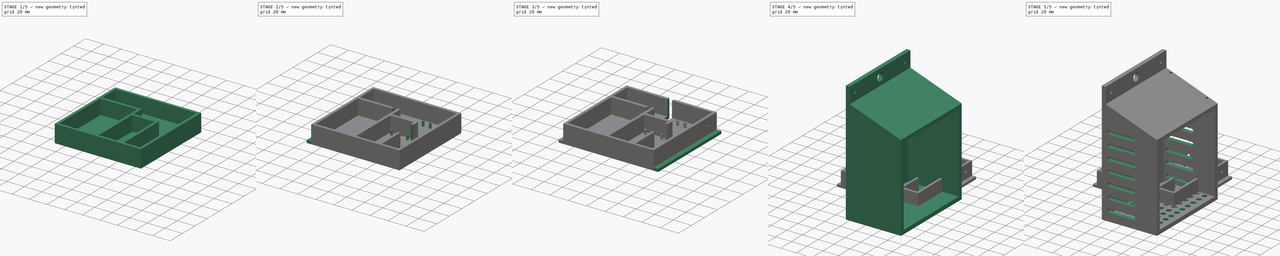
[diagram: build sequence overview — one tinted view per stage of 5, left to right]
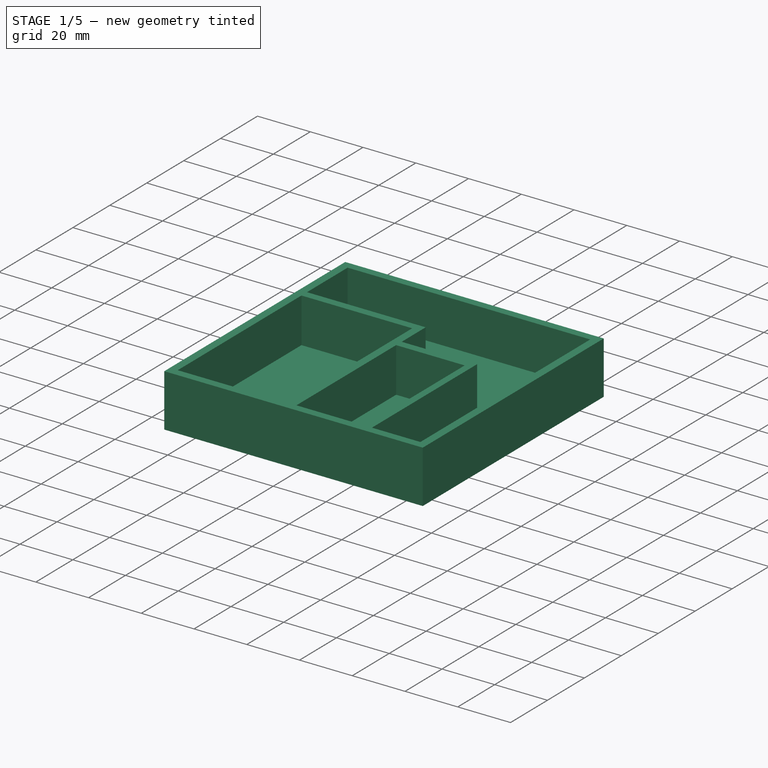
[diagram: stage 1 of 5 — iso view after this stage's code; geometry added in this stage tinted green]
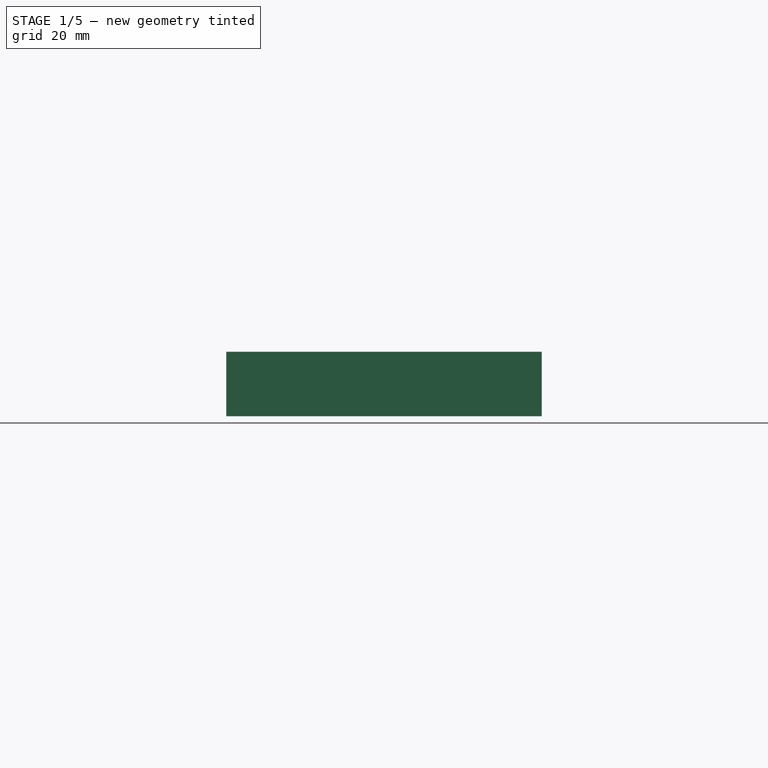
[diagram: stage 1 of 5 — front view after this stage's code; geometry added in this stage tinted green]
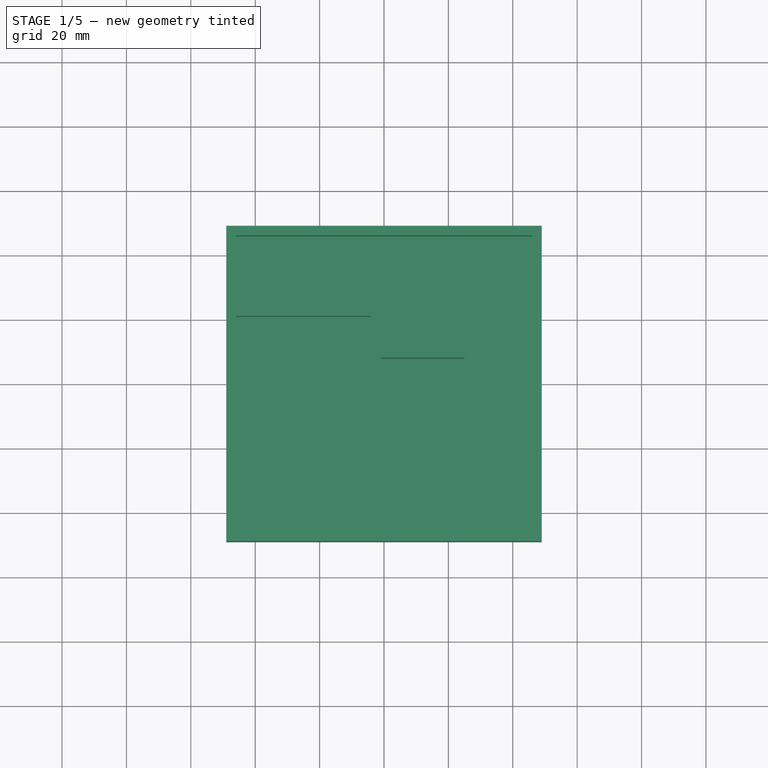
[diagram: stage 1 of 5 — top view after this stage's code; geometry added in this stage tinted green]
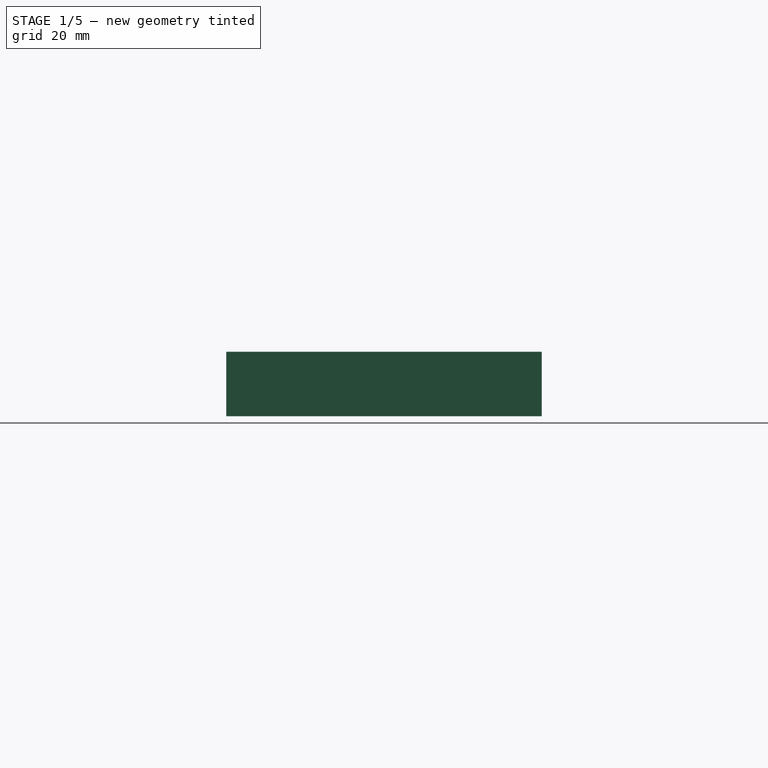
[diagram: stage 1 of 5 — right view after this stage's code; geometry added in this stage tinted green]
FCSTD DOCUMENT  (FreeCAD 0.19R24028 (Git))
Label: Wetterstation
License: Creative Commons Attribution
LicenseURL: http://creativecommons.org/licenses/by/4.0/
objects: Sketcher::SketchObject×22, PartDesign::Pocket×15, PartDesign::Pad×6, PartDesign::Body×2, PartDesign::Chamfer×1
note: 68 computed .brp shape members not serialized (recipe doc carries the construction recipe); baked Part::Feature solids carry a one-line shape summary decoded from their .brp

FEATURE [Sketcher::SketchObject] Sketch
  FullyConstrained = true
  MapMode = 5
  Support = -> [XY_Plane]
  sketch-geometry (4):
    g0: LineSegment StartX=-49 StartY=49 StartZ=0 EndX=49 EndY=49 EndZ=0
    g1: LineSegment StartX=49 StartY=49 StartZ=0 EndX=49 EndY=-49 EndZ=0
    g2: LineSegment StartX=49 StartY=-49 StartZ=0 EndX=-49 EndY=-49 EndZ=0
    g3: LineSegment StartX=-49 StartY=-49 StartZ=0 EndX=-49 EndY=49 EndZ=0
  constraints (11):
    c: Coincident(g0,g1)
    c: Coincident(g1,g2)
    c: Coincident(g2,g3)
    c: Coincident(g3,g0)
    c: Horizontal(g0)
    c: Horizontal(g2)
    c: Vertical(g1)
    c: Vertical(g3)
    c: Distance(g0) = 98
    c: Distance(g3) = 98
    c: Symmetric(g0,g1,g-1)
FEATURE [PartDesign::Pad] Pad
  Direction = (1,1,1)
  Length = 20
  Length2 = 100
  Profile = -> Sketch
  Type = 0
FEATURE [Sketcher::SketchObject] Sketch001
  ExternalGeometry = -> [Pad]
  FullyConstrained = true
  MapMode = 5
  Placement = pos=(0,0,20) rot=(0,0,1;0rad)
  Support = -> [Pad]
  sketch-geometry (4):
    g0: LineSegment StartX=-46 StartY=21 StartZ=0 EndX=-4 EndY=21 EndZ=0
    g1: LineSegment StartX=-4 StartY=21 StartZ=0 EndX=-4 EndY=-46 EndZ=0
    g2: LineSegment StartX=-4 StartY=-46 StartZ=0 EndX=-46 EndY=-46 EndZ=0
    g3: LineSegment StartX=-46 StartY=-46 StartZ=0 EndX=-46 EndY=21 EndZ=0
  constraints (12):
    c: Coincident(g0,g1)
    c: Coincident(g1,g2)
    c: Coincident(g2,g3)
    c: Coincident(g3,g0)
    c: Horizontal(g0)
    c: Horizontal(g2)
    c: Vertical(g1)
    c: Vertical(g3)
    c: Distance(g0) = 42
    c: Distance(g1) = 67
    c: DistanceX(g-4,g2) = 3
    c: DistanceY(g-4,g2) = 3
FEATURE [PartDesign::Pocket] Pocket  label="Akkuhalter"
  BaseFeature = -> Pad
  Length = 5
  Length2 = 100
  Offset = -3
  Profile = -> Sketch001
  Type = 2
FEATURE [Sketcher::SketchObject] Sketch002
  ExternalGeometry = -> [Pocket]
  FullyConstrained = true
  MapMode = 5
  Placement = pos=(0,0,20) rot=(0,0,1;0rad)
  Support = -> [Pocket]
  sketch-geometry (4):
    g0: LineSegment StartX=-1 StartY=-46 StartZ=0 EndX=25 EndY=-46 EndZ=0
    g1: LineSegment StartX=25 StartY=-46 StartZ=0 EndX=25 EndY=8 EndZ=0
    g2: LineSegment StartX=25 StartY=8 StartZ=0 EndX=-1 EndY=8 EndZ=0
    g3: LineSegment StartX=-1 StartY=8 StartZ=0 EndX=-1 EndY=-46 EndZ=0
  constraints (12):
    c: Coincident(g0,g1)
    c: Coincident(g1,g2)
    c: Coincident(g2,g3)
    c: Coincident(g3,g0)
    c: Horizontal(g0)
    c: Horizontal(g2)
    c: Vertical(g1)
    c: Vertical(g3)
    c: Distance(g2) = 26
    c: Distance(g1) = 54
    c: Horizontal(g0,g-3)
    c: DistanceX(g-3,g0) = 3
FEATURE [PartDesign::Pocket] Pocket001  label="Feather Halter"
  BaseFeature = -> Pocket
  Length = 5
  Length2 = 100
  Offset = -3
  Profile = -> Sketch002
  Type = 2
FEATURE [Sketcher::SketchObject] Sketch003
  ExternalGeometry = -> [Pocket001]
  FullyConstrained = false
  MapMode = 5
  Placement = pos=(0,0,20) rot=(0,0,1;0rad)
  Support = -> [Pocket001]
  sketch-geometry (8):
    g0: LineSegment StartX=-46 StartY=46 StartZ=0 EndX=-46 EndY=24 EndZ=0
    g1: LineSegment StartX=-46 StartY=24 StartZ=0 EndX=-1 EndY=24 EndZ=0
    g2: LineSegment StartX=-1 StartY=24 StartZ=0 EndX=-1 EndY=11 EndZ=0
    g3: LineSegment StartX=-1 StartY=11 StartZ=0 EndX=27.6312 EndY=11 EndZ=0
    g4: LineSegment StartX=27.6312 StartY=11 StartZ=0 EndX=27.6312 EndY=-46 EndZ=0
    g5: LineSegment StartX=27.6312 StartY=-46 StartZ=0 EndX=46 EndY=-46 EndZ=0
    g6: LineSegment StartX=46 StartY=-46 StartZ=0 EndX=46 EndY=46 EndZ=0
    g7: LineSegment StartX=46 StartY=46 StartZ=0 EndX=-46 EndY=46 EndZ=0
  constraints (23):
    c: Vertical(g0)
    c: Coincident(g0,g1)
    c: Horizontal(g1)
    c: Coincident(g1,g2)
    c: Vertical(g2)
    c: Coincident(g2,g3)
    c: Horizontal(g3)
    c: Coincident(g3,g4)
    c: Vertical(g4)
    c: Coincident(g4,g5)
    c: Horizontal(g5)
    c: Coincident(g5,g6)
    c: Vertical(g6)
    c: Coincident(g6,g7)
    c: Coincident(g7,g0)
    c: Horizontal(g7)
    c: Vertical(g0,g-3)
    c: DistanceY(g0,g-5) = 3
    c: Vertical(g2,g-4)
    c: DistanceY(g-4,g3) = 3
    c: DistanceY(g-3,g1) = 3
    c: DistanceY(g-6,g5) = 3
    c: DistanceX(g5,g-6) = 3
FEATURE [PartDesign::Pocket] Pocket002
  BaseFeature = -> Pocket001
  Length = 5
  Length2 = 100
  Offset = -3
  Profile = -> Sketch003
  Type = 2
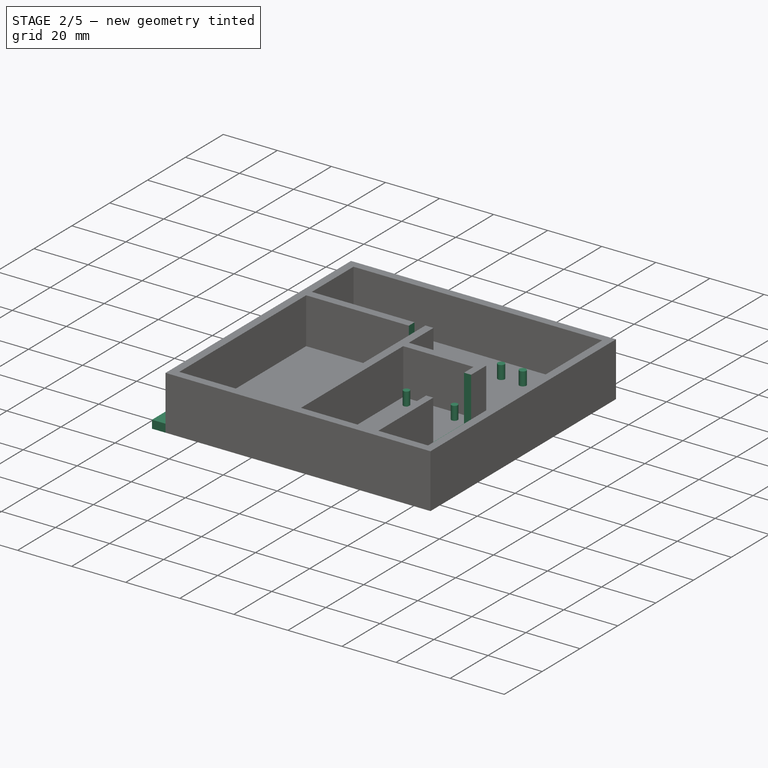
[diagram: stage 2 of 5 — iso view after this stage's code; geometry added in this stage tinted green]
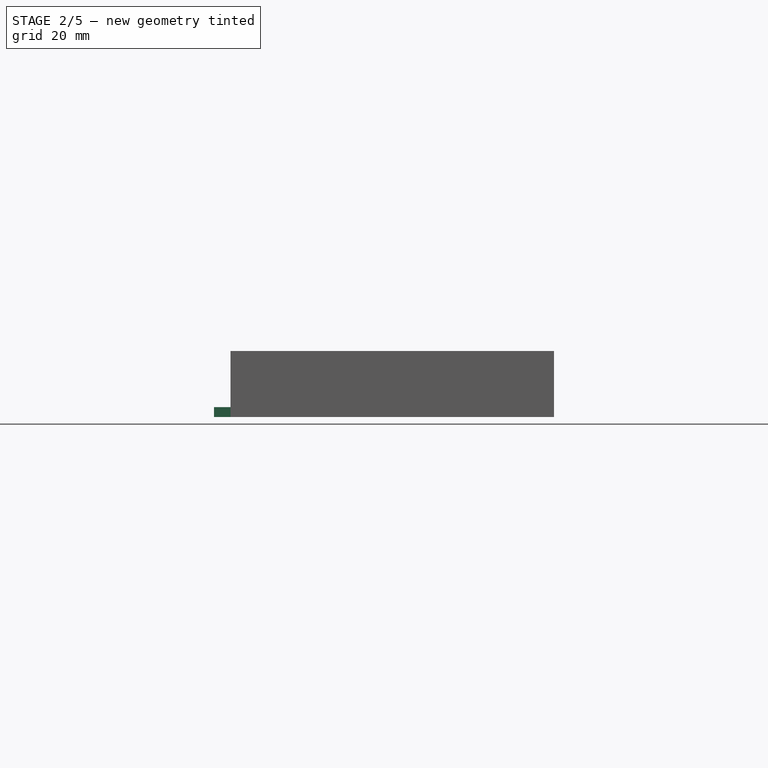
[diagram: stage 2 of 5 — front view after this stage's code; geometry added in this stage tinted green]
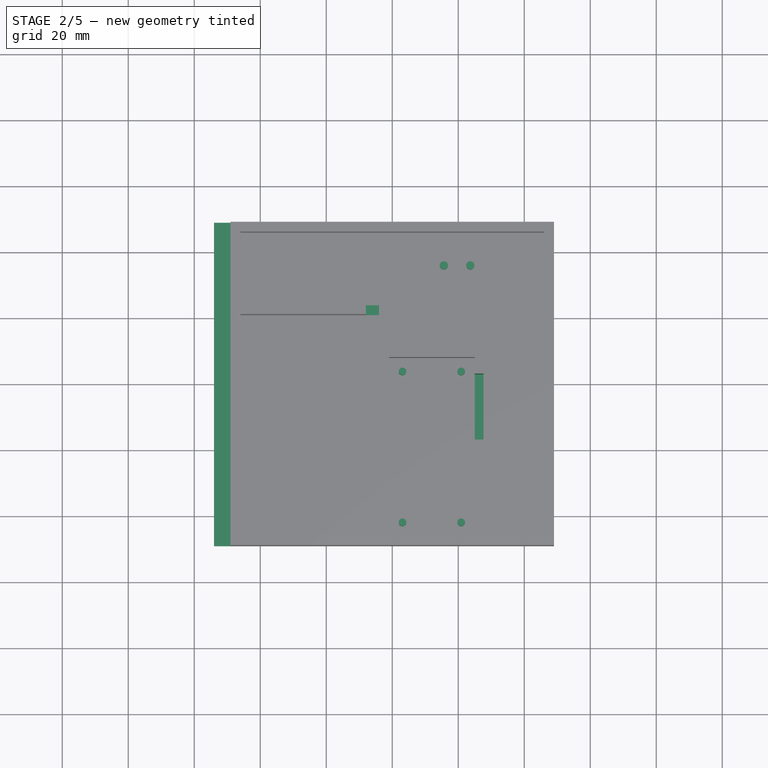
[diagram: stage 2 of 5 — top view after this stage's code; geometry added in this stage tinted green]
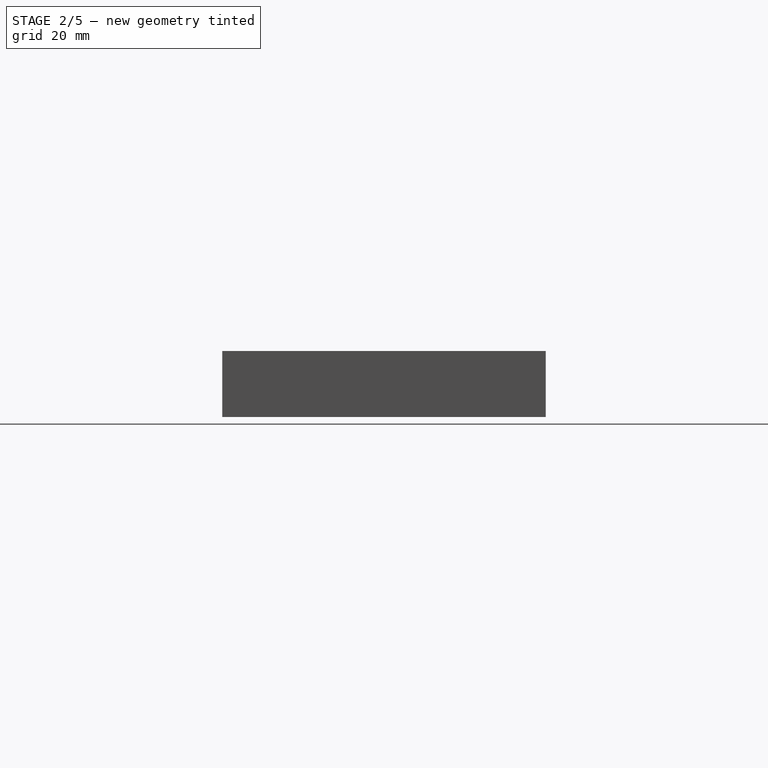
[diagram: stage 2 of 5 — right view after this stage's code; geometry added in this stage tinted green]
FEATURE [Sketcher::SketchObject] Sketch004
  ExternalGeometry = -> [Pocket002]
  FullyConstrained = true
  MapMode = 5
  Placement = pos=(0,0,20) rot=(0,0,1;0rad)
  Support = -> [Pocket002]
  sketch-geometry (4):
    g0: LineSegment StartX=-8 StartY=24 StartZ=0 EndX=-4 EndY=24 EndZ=0
    g1: LineSegment StartX=-4 StartY=24 StartZ=0 EndX=-4 EndY=21 EndZ=0
    g2: LineSegment StartX=-4 StartY=21 StartZ=0 EndX=-8 EndY=21 EndZ=0
    g3: LineSegment StartX=-8 StartY=21 StartZ=0 EndX=-8 EndY=24 EndZ=0
  constraints (11):
    c: Coincident(g0,g1)
    c: Coincident(g1,g2)
    c: Coincident(g2,g3)
    c: Coincident(g3,g0)
    c: Horizontal(g0)
    c: Horizontal(g2)
    c: Vertical(g1)
    c: Vertical(g3)
    c: Coincident(g1,g-3)
    c: Distance(g0) = 4
    c: PointOnObject(g0,g-4)
FEATURE [PartDesign::Pocket] Pocket003  label="Akkukabel"
  BaseFeature = -> Pocket002
  Length = 5
  Length2 = 100
  Offset = -3
  Profile = -> Sketch004
  Type = 2
FEATURE [Sketcher::SketchObject] Sketch005
  ExternalGeometry = -> [Pocket003]
  FullyConstrained = true
  MapMode = 5
  Placement = pos=(0,0,20) rot=(0,0,1;0rad)
  Support = -> [Pocket003]
  sketch-geometry (4):
    g0: LineSegment StartX=25 StartY=3 StartZ=0 EndX=27.6312 EndY=3 EndZ=0
    g1: LineSegment StartX=27.6312 StartY=3 StartZ=0 EndX=27.6312 EndY=-17 EndZ=0
    g2: LineSegment StartX=27.6312 StartY=-17 StartZ=0 EndX=25 EndY=-17 EndZ=0
    g3: LineSegment StartX=25 StartY=-17 StartZ=0 EndX=25 EndY=3 EndZ=0
  constraints (12):
    c: Coincident(g0,g1)
    c: Coincident(g1,g2)
    c: Coincident(g2,g3)
    c: Coincident(g3,g0)
    c: Horizontal(g0)
    c: Horizontal(g2)
    c: Vertical(g1)
    c: Vertical(g3)
    c: Distance(g1) = 20
    c: PointOnObject(g0,g-3)
    c: PointOnObject(g0,g-4)
    c: DistanceY(g0,g-3) = 5
FEATURE [PartDesign::Pocket] Pocket004
  BaseFeature = -> Pocket003
  Length = 5
  Length2 = 100
  Offset = -3
  Profile = -> Sketch005
  Type = 2
FEATURE [Sketcher::SketchObject] Sketch006
  ExternalGeometry = -> [Pocket004]
  FullyConstrained = true
  MapMode = 5
  Placement = pos=(0,0,3) rot=(0,0,1;0rad)
  Support = -> [Pocket004]
  sketch-geometry (8):
    g0: Circle CenterX=3.11 CenterY=3.86 CenterZ=0 NormalX=0 NormalY=0 NormalZ=1 AngleXU=0 Radius=1.15
    g1: Circle CenterX=20.89 CenterY=3.86 CenterZ=0 NormalX=0 NormalY=0 NormalZ=1 AngleXU=0 Radius=1.15
    g2: Circle CenterX=3.11 CenterY=-41.86 CenterZ=0 NormalX=0 NormalY=0 NormalZ=1 AngleXU=0 Radius=1.15
    g3: Circle CenterX=20.89 CenterY=-41.86 CenterZ=0 NormalX=0 NormalY=0 NormalZ=1 AngleXU=0 Radius=1.15
    g4: LineSegment StartX=3.11 StartY=3.86 StartZ=0 EndX=-1 EndY=8 EndZ=0
    g5: LineSegment StartX=20.89 StartY=3.86 StartZ=0 EndX=25 EndY=8 EndZ=0
    g6: LineSegment StartX=3.11 StartY=-41.86 StartZ=0 EndX=-1 EndY=-46 EndZ=0
    g7: LineSegment StartX=20.89 StartY=-41.86 StartZ=0 EndX=25 EndY=-46 EndZ=0
  constraints (20):
    c: Diameter(g0) = 2.3
    c: Equal(g0,g1)
    c: Equal(g1,g2)
    c: Equal(g2,g3)
    c: Horizontal(g0,g1)
    c: Vertical(g0,g2)
    c: Vertical(g1,g3)
    c: DistanceY(g2,g0) = 45.72
    c: Horizontal(g2,g3)
    c: DistanceX(g0,g1) = 17.78
    c: Coincident(g4,g0)
    c: Coincident(g4,g-3)
    c: Coincident(g5,g1)
    c: Coincident(g5,g-3)
    c: Coincident(g6,g2)
    c: Coincident(g6,g-4)
    c: Coincident(g7,g3)
    c: Coincident(g7,g-4)
    c: Equal(g4,g5)
    c: Equal(g5,g6)
FEATURE [PartDesign::Pad] Pad001  label="Feather Pfosten"
  BaseFeature = -> Pocket004
  Direction = (1,1,1)
  Length = 5
  Length2 = 100
  Profile = -> Sketch006
  Type = 0
FEATURE [Sketcher::SketchObject] Sketch007
  ExternalGeometry = -> [Pad001]
  FullyConstrained = true
  MapMode = 5
  Placement = pos=(0,0,3) rot=(0,0,1;0rad)
  Support = -> [Pad001]
  sketch-geometry (2):
    g0: Circle CenterX=15.6312 CenterY=36 CenterZ=0 NormalX=0 NormalY=0 NormalZ=1 AngleXU=0 Radius=1.25
    g1: Circle CenterX=23.6312 CenterY=36 CenterZ=0 NormalX=0 NormalY=0 NormalZ=1 AngleXU=0 Radius=1.25
  constraints (6):
    c: Diameter(g0) = 2.5
    c: Equal(g0,g1)
    c: Horizontal(g0,g1)
    c: Distance(g0,g1) = 8
    c: DistanceY(g-3,g0) = 25
    c: DistanceX(g1,g-3) = 4
FEATURE [PartDesign::Pad] Pad002  label="Sensor Pfosten"
  BaseFeature = -> Pad001
  Direction = (1,1,1)
  Length = 5
  Length2 = 100
  Profile = -> Sketch007
  Type = 0
FEATURE [Sketcher::SketchObject] Sketch008
  ExternalGeometry = -> [Pad002]
  FullyConstrained = true
  MapMode = 5
  Placement = pos=(-49,0,0) rot=(0.57735,-0.57735,-0.57735;2.0944rad)
  Support = -> [Pad002]
  sketch-geometry (4):
    g0: LineSegment StartX=-49 StartY=3 StartZ=0 EndX=49 EndY=3 EndZ=0
    g1: LineSegment StartX=49 StartY=3 StartZ=0 EndX=49 EndY=0 EndZ=0
    g2: LineSegment StartX=49 StartY=0 StartZ=0 EndX=-49 EndY=0 EndZ=0
    g3: LineSegment StartX=-49 StartY=0 StartZ=0 EndX=-49 EndY=3 EndZ=0
  constraints (10):
    c: Coincident(g0,g1)
    c: Coincident(g1,g2)
    c: Coincident(g2,g3)
    c: Coincident(g3,g0)
    c: Horizontal(g0)
    c: Vertical(g1)
    c: Vertical(g3)
    c: Coincident(g2,g-3)
    c: Coincident(g1,g-3)
    c: Distance(g3) = 3
FEATURE [PartDesign::Pad] Pad003  label="Griff Links"
  BaseFeature = -> Pad002
  Direction = (1,1,1)
  Length = 5
  Length2 = 100
  Profile = -> Sketch008
  Type = 0
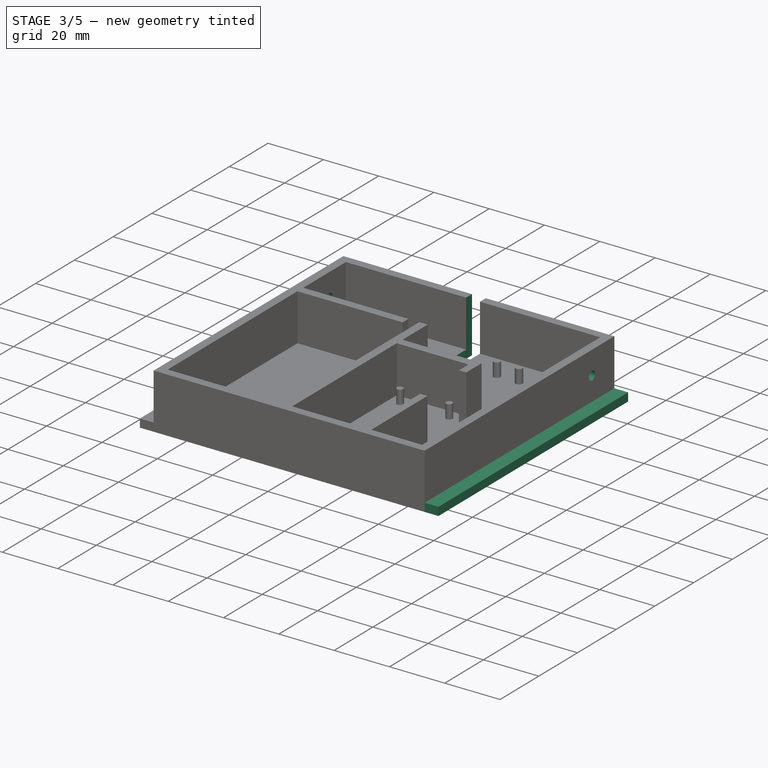
[diagram: stage 3 of 5 — iso view after this stage's code; geometry added in this stage tinted green]
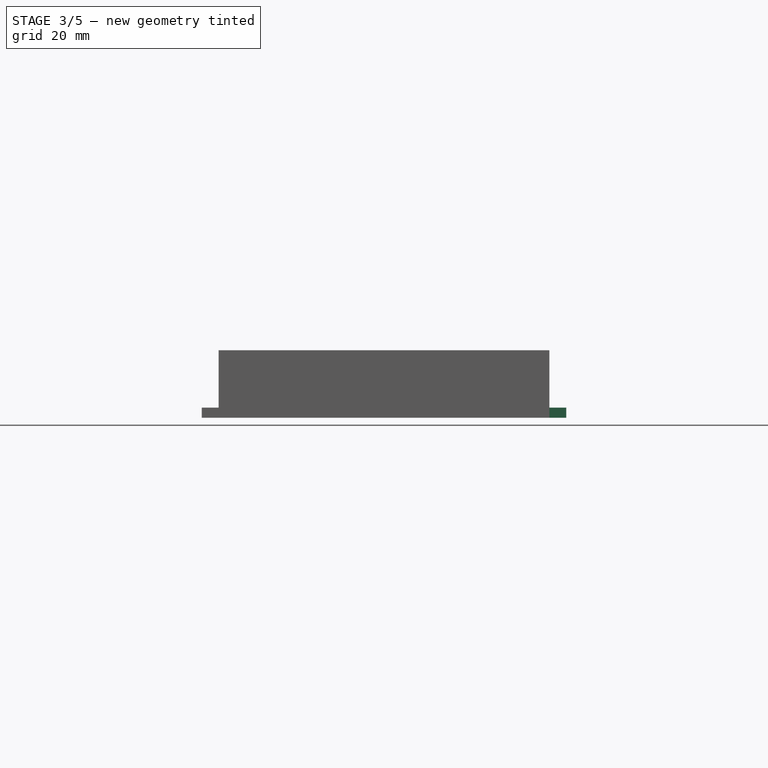
[diagram: stage 3 of 5 — front view after this stage's code; geometry added in this stage tinted green]
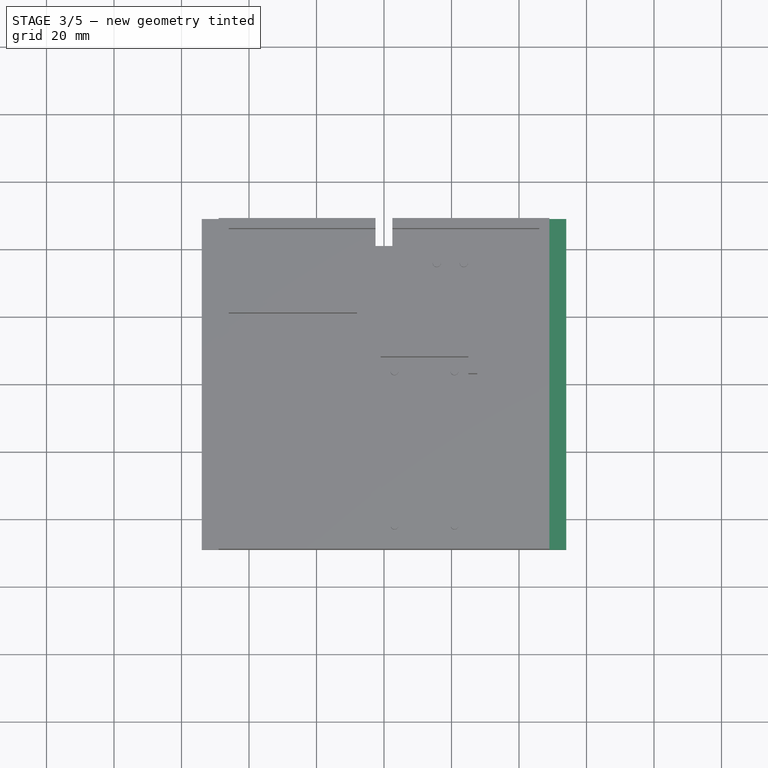
[diagram: stage 3 of 5 — top view after this stage's code; geometry added in this stage tinted green]
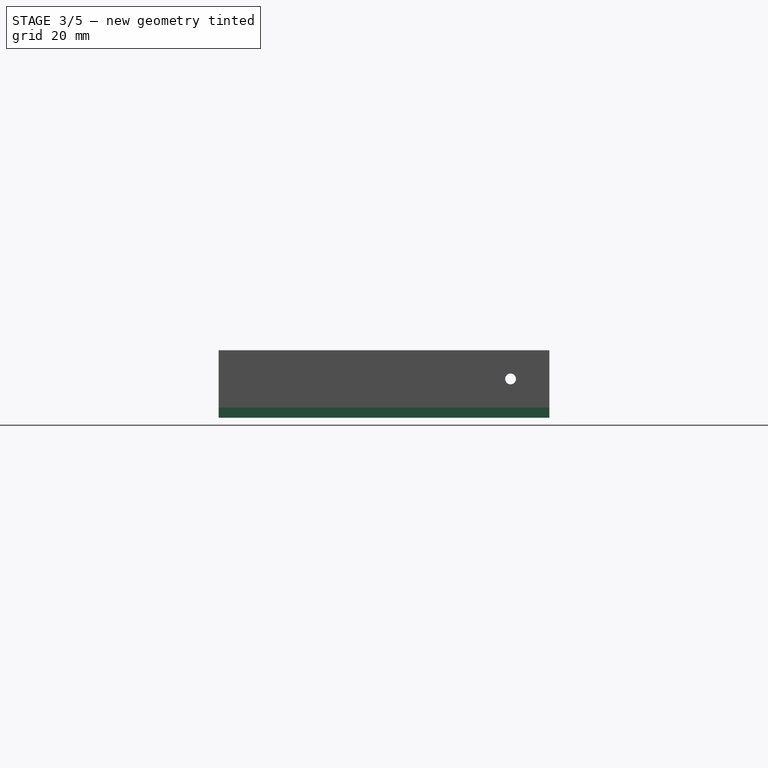
[diagram: stage 3 of 5 — right view after this stage's code; geometry added in this stage tinted green]
FEATURE [Sketcher::SketchObject] Sketch009
  ExternalGeometry = -> [Pad003]
  FullyConstrained = true
  MapMode = 5
  Placement = pos=(49,0,0) rot=(0.57735,0.57735,0.57735;2.0944rad)
  Support = -> [Pad003]
  sketch-geometry (4):
    g0: LineSegment StartX=-49 StartY=3 StartZ=0 EndX=49 EndY=3 EndZ=0
    g1: LineSegment StartX=49 StartY=3 StartZ=0 EndX=49 EndY=0 EndZ=0
    g2: LineSegment StartX=49 StartY=0 StartZ=0 EndX=-49 EndY=0 EndZ=0
    g3: LineSegment StartX=-49 StartY=0 StartZ=0 EndX=-49 EndY=3 EndZ=0
  constraints (10):
    c: Coincident(g0,g1)
    c: Coincident(g1,g2)
    c: Coincident(g2,g3)
    c: Coincident(g3,g0)
    c: Horizontal(g0)
    c: Vertical(g1)
    c: Vertical(g3)
    c: Coincident(g1,g-3)
    c: Coincident(g2,g-3)
    c: Distance(g1) = 3
FEATURE [PartDesign::Pad] Pad004  label="Griff Rechs"
  BaseFeature = -> Pad003
  Direction = (1,1,1)
  Length = 5
  Length2 = 100
  Profile = -> Sketch009
  Type = 0
FEATURE [Sketcher::SketchObject] Sketch010
  ExternalGeometry = -> [Pad004]
  FullyConstrained = true
  MapMode = 5
  Placement = pos=(-46,0,0) rot=(0.57735,0.57735,0.57735;2.0944rad)
  Support = -> [Pad004]
  sketch-geometry (3):
    g0: Circle CenterX=37.5 CenterY=11.5 CenterZ=0 NormalX=0 NormalY=0 NormalZ=1 AngleXU=0 Radius=1.6
    g1: LineSegment StartX=37.5 StartY=11.5 StartZ=0 EndX=46 EndY=20 EndZ=0
    g2: LineSegment StartX=37.5 StartY=11.5 StartZ=0 EndX=46 EndY=3 EndZ=0
  constraints (7):
    c: Diameter(g0) = 3.2
    c: Coincident(g1,g0)
    c: Coincident(g1,g-3)
    c: Coincident(g2,g0)
    c: Coincident(g2,g-3)
    c: Angle(g2,g1) = 1.5708
    c: Equal(g1,g2)
FEATURE [PartDesign::Pocket] Pocket005  label="Loch Links"
  BaseFeature = -> Pad004
  Length = 5
  Length2 = 100
  Profile = -> Sketch010
  Type = 2
FEATURE [Sketcher::SketchObject] Sketch011
  ExternalGeometry = -> [Pocket005]
  FullyConstrained = true
  MapMode = 5
  Placement = pos=(46,0,0) rot=(0.57735,-0.57735,-0.57735;2.0944rad)
  Support = -> [Pocket005]
  sketch-geometry (3):
    g0: Circle CenterX=-37.5 CenterY=11.5 CenterZ=0 NormalX=0 NormalY=0 NormalZ=1 AngleXU=0 Radius=1.6
    g1: LineSegment StartX=-37.5 StartY=11.5 StartZ=0 EndX=-46 EndY=20 EndZ=0
    g2: LineSegment StartX=-37.5 StartY=11.5 StartZ=0 EndX=-46 EndY=3 EndZ=0
  constraints (7):
    c: Diameter(g0) = 3.2
    c: Coincident(g1,g0)
    c: Coincident(g1,g-3)
    c: Coincident(g2,g0)
    c: Coincident(g-3,g2)
    c: Equal(g1,g2)
    c: Angle(g1,g2) = 1.5708
FEATURE [PartDesign::Pocket] Pocket006  label="Loch Rechts"
  BaseFeature = -> Pocket005
  Length = 5
  Length2 = 100
  Profile = -> Sketch011
  Type = 2
FEATURE [Sketcher::SketchObject] Sketch016
  ExternalGeometry = -> [Pocket006]
  FullyConstrained = true
  MapMode = 5
  Placement = pos=(0,0,20) rot=(0,0,1;0rad)
  Support = -> [Pocket006]
  sketch-geometry (4):
    g0: LineSegment StartX=-2.5 StartY=49 StartZ=0 EndX=2.5 EndY=49 EndZ=0
    g1: LineSegment StartX=2.5 StartY=49 StartZ=0 EndX=2.5 EndY=41 EndZ=0
    g2: LineSegment StartX=2.5 StartY=41 StartZ=0 EndX=-2.5 EndY=41 EndZ=0
    g3: LineSegment StartX=-2.5 StartY=41 StartZ=0 EndX=-2.5 EndY=49 EndZ=0
  constraints (11):
    c: Coincident(g0,g1)
    c: Coincident(g1,g2)
    c: Coincident(g2,g3)
    c: Coincident(g3,g0)
    c: Horizontal(g2)
    c: Vertical(g1)
    c: Vertical(g3)
    c: Distance(g0) = 5
    c: Distance(g3) = 8
    c: Symmetric(g0,g0,g-2)
    c: PointOnObject(g0,g-3)
FEATURE [PartDesign::Pocket] Pocket010  label="Loch für Kabel"
  BaseFeature = -> Pocket006
  Length = 5
  Length2 = 100
  Profile = -> Sketch016
  Type = 1
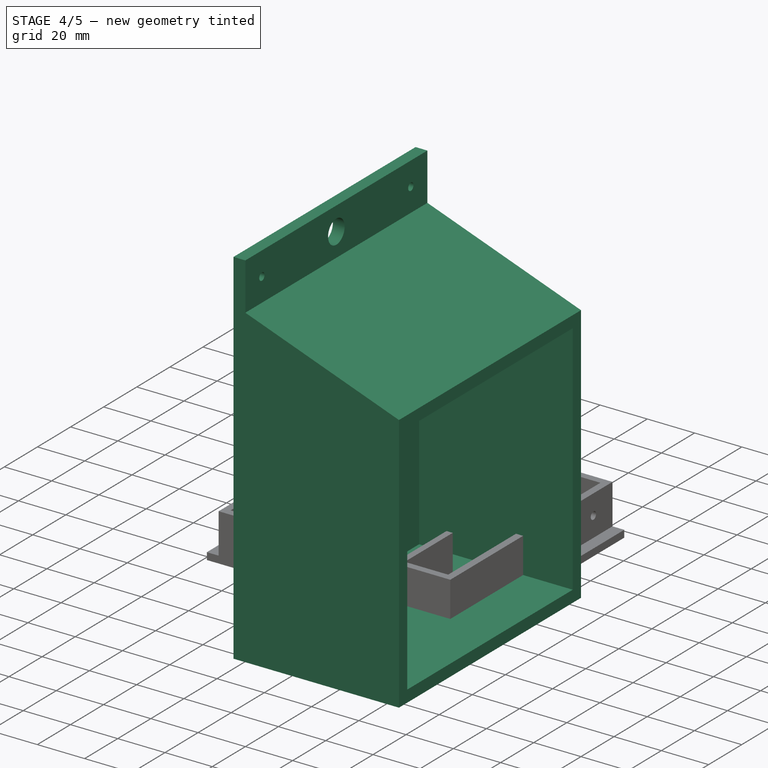
[diagram: stage 4 of 5 — iso view after this stage's code; geometry added in this stage tinted green]
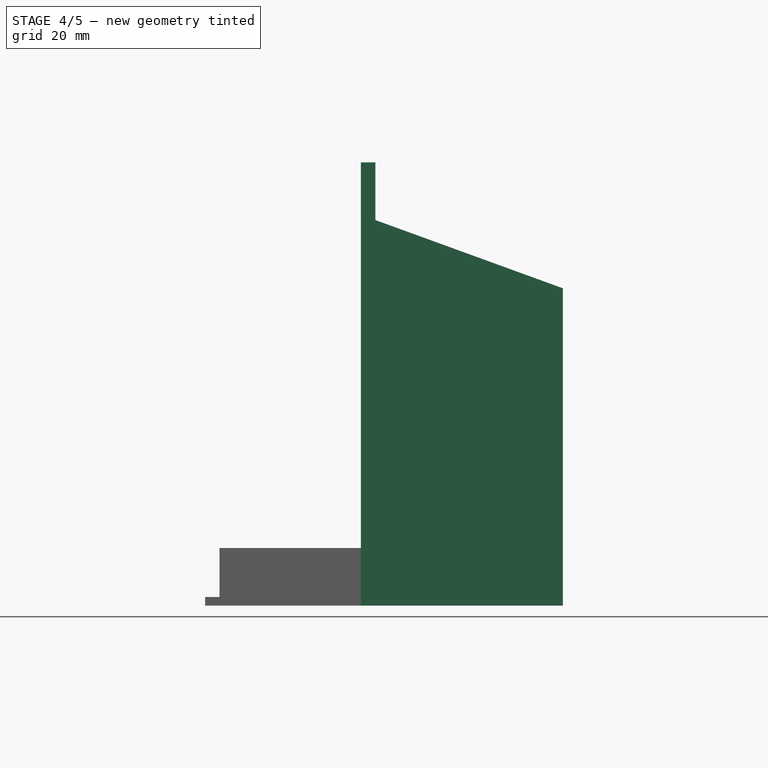
[diagram: stage 4 of 5 — front view after this stage's code; geometry added in this stage tinted green]
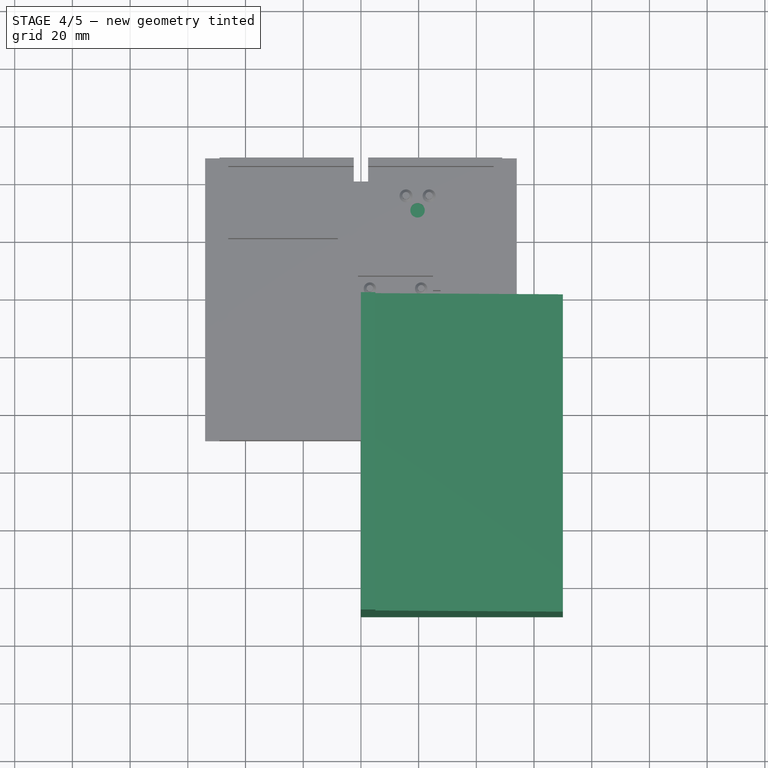
[diagram: stage 4 of 5 — top view after this stage's code; geometry added in this stage tinted green]
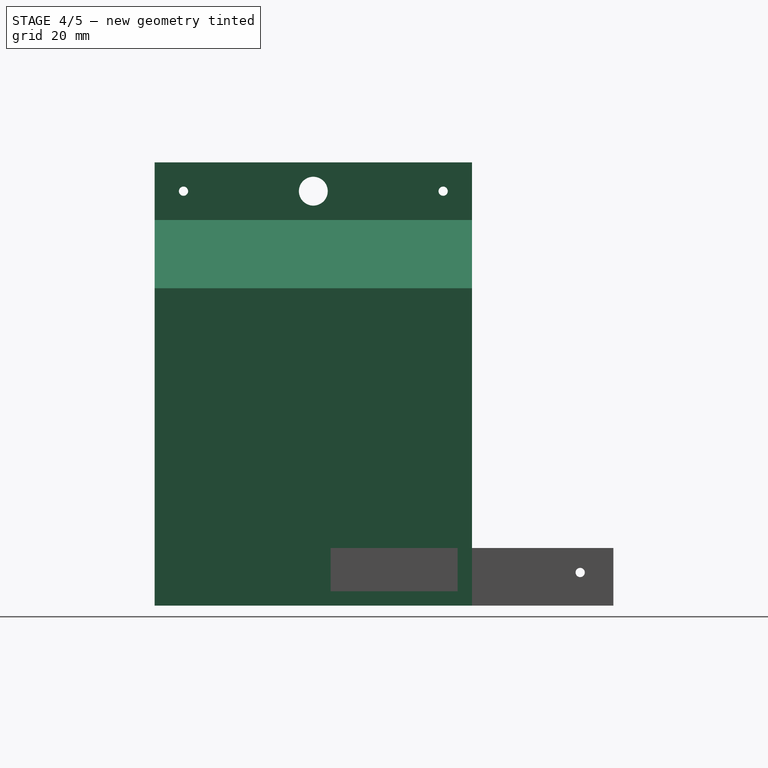
[diagram: stage 4 of 5 — right view after this stage's code; geometry added in this stage tinted green]
FEATURE [Sketcher::SketchObject] Sketch012
  FullyConstrained = true
  MapMode = 5
  Placement = pos=(0,0,0) rot=(1,0,0;1.5708rad)
  Support = -> [XZ_Plane001]
  sketch-geometry (6):
    g0: LineSegment StartX=0 StartY=0 StartZ=0 EndX=0 EndY=153.658 EndZ=0
    g1: LineSegment StartX=0 StartY=153.658 StartZ=0 EndX=5 EndY=153.658 EndZ=0
    g2: LineSegment StartX=5 StartY=153.658 StartZ=0 EndX=5 EndY=133.658 EndZ=0
    g3: LineSegment StartX=5 StartY=133.658 StartZ=0 EndX=70 EndY=110 EndZ=0
    g4: LineSegment StartX=70 StartY=110 StartZ=0 EndX=70 EndY=0 EndZ=0
    g5: LineSegment StartX=70 StartY=0 StartZ=0 EndX=0 EndY=0 EndZ=0
  constraints (17):
    c: Coincident(g-1,g0)
    c: PointOnObject(g0,g-2)
    c: Coincident(g0,g1)
    c: Coincident(g1,g2)
    c: Vertical(g2)
    c: Coincident(g2,g3)
    c: Coincident(g3,g4)
    c: Vertical(g4)
    c: Coincident(g4,g5)
    c: Coincident(g5,g0)
    c: Horizontal(g5)
    c: Distance(g4) = 110
    c: Horizontal(g1)
    c: Distance(g1) = 5
    c: Distance(g5) = 70
    c: Distance(g2) = 20
    c: Angle(g3,g2) = 1.91986
FEATURE [PartDesign::Pad] Pad005
  Direction = (1,1,1)
  Length = 110
  Length2 = 100
  Placement = pos=(0,0,0) rot=(1,0,0;1.5708rad)
  Profile = -> Sketch012
  Type = 0
FEATURE [Sketcher::SketchObject] Sketch013
  ExternalGeometry = -> [Pad005]
  FullyConstrained = true
  MapMode = 5
  Placement = pos=(70,0,0) rot=(0.707107,0,0.707107;3.14159rad)
  Support = -> [Pad005]
  sketch-geometry (6):
    g0: LineSegment StartX=105 StartY=105 StartZ=0 EndX=5 EndY=105 EndZ=0
    g1: LineSegment StartX=5 StartY=105 StartZ=0 EndX=5 EndY=5 EndZ=0
    g2: LineSegment StartX=5 StartY=5 StartZ=0 EndX=105 EndY=5 EndZ=0
    g3: LineSegment StartX=105 StartY=5 StartZ=0 EndX=105 EndY=105 EndZ=0
    g4: LineSegment StartX=105 StartY=105 StartZ=0 EndX=110 EndY=110 EndZ=0
    g5: LineSegment StartX=5 StartY=5 StartZ=0 EndX=0 EndY=0 EndZ=0
  constraints (16):
    c: Coincident(g0,g1)
    c: Coincident(g1,g2)
    c: Coincident(g2,g3)
    c: Coincident(g3,g0)
    c: Horizontal(g0)
    c: Horizontal(g2)
    c: Vertical(g1)
    c: Vertical(g3)
    c: Distance(g3) = 100
    c: Distance(g2) = 100
    c: Coincident(g4,g0)
    c: Coincident(g4,g-3)
    c: Coincident(g5,g1)
    c: Coincident(g5,g-1)
    c: Equal(g5,g4)
    c: Parallel(g4,g5)
FEATURE [PartDesign::Pocket] Pocket007
  BaseFeature = -> Pad005
  Length = 0
  Length2 = 100
  Offset = -5
  Placement = pos=(0,0,0) rot=(1,0,0;1.5708rad)
  Profile = -> Sketch013
  Type = 2
FEATURE [Sketcher::SketchObject] Sketch014
  ExternalGeometry = -> [Pocket007]
  FullyConstrained = true
  MapMode = 5
  Placement = pos=(5,0,0) rot=(0.707107,0,0.707107;3.14159rad)
  Support = -> [Pocket007]
  sketch-geometry (5):
    g0: Circle CenterX=143.658 CenterY=55 CenterZ=0 NormalX=0 NormalY=0 NormalZ=1 AngleXU=0 Radius=5
    g1: Circle CenterX=143.658 CenterY=100 CenterZ=0 NormalX=0 NormalY=0 NormalZ=1 AngleXU=0 Radius=1.6
    g2: Circle CenterX=143.658 CenterY=10 CenterZ=0 NormalX=0 NormalY=0 NormalZ=1 AngleXU=0 Radius=1.6
    g3: LineSegment StartX=153.658 StartY=110 StartZ=0 EndX=143.658 EndY=55 EndZ=0
    g4: LineSegment StartX=143.658 StartY=55 StartZ=0 EndX=133.658 EndY=-1.492e-13 EndZ=0
  constraints (13):
    c: Diameter(g0) = 10
    c: Diameter(g1) = 3.2
    c: Equal(g1,g2)
    c: Coincident(g3,g-3)
    c: Coincident(g3,g0)
    c: Coincident(g4,g0)
    c: Coincident(g4,g-4)
    c: Equal(g4,g3)
    c: Parallel(g3,g4)
    c: DistanceY(g1,g-4) = 10
    c: DistanceX(g4,g2) = 10
    c: DistanceX(g-4,g1) = 10
    c: DistanceY(g4,g2) = 10
FEATURE [PartDesign::Pocket] Pocket008  label="Aufhänger"
  BaseFeature = -> Pocket007
  Length = 5
  Length2 = 100
  Placement = pos=(0,0,0) rot=(1,0,0;1.5708rad)
  Profile = -> Sketch014
  Type = 2
FEATURE [PartDesign::Body] Body001  label="Gehäuse"
  Group = -> [Sketch012,Pad005,Sketch013,Pocket007,Sketch014,Pocket008,Sketch015,Pocket009,Sketch017,Pocket011,Sketch019,Pocket012,Sketch020,Pocket013]
  Origin = -> Origin001
  Tip = -> Pocket013
FEATURE [PartDesign::Chamfer] Chamfer  label="Chamfer für Stifte"
  Angle = 45
  Base = -> Pocket010 [Edge81,Edge80,Edge141,Edge140,Edge139,Edge138]
  BaseFeature = -> Pocket010
  ChamferType = 0
  FlipDirection = false
  Size = 1
  Size2 = 1
  SupportTransform = false
FEATURE [Sketcher::SketchObject] Sketch021
  ExternalGeometry = -> [Chamfer]
  FullyConstrained = true
  MapMode = 5
  Placement = pos=(0,0,3) rot=(0,0,1;0rad)
  Support = -> [Chamfer]
  sketch-geometry (3):
    g0: Circle CenterX=19.6312 CenterY=31 CenterZ=0 NormalX=0 NormalY=0 NormalZ=1 AngleXU=0 Radius=2.5
    g1: LineSegment StartX=19.6312 StartY=31 StartZ=0 EndX=15.6312 EndY=36 EndZ=0
    g2: LineSegment StartX=19.6312 StartY=31 StartZ=0 EndX=23.6312 EndY=36 EndZ=0
  constraints (7):
    c: Diameter(g0) = 5
    c: Coincident(g1,g0)
    c: Coincident(g1,g-3)
    c: Coincident(g2,g0)
    c: Coincident(g2,g-4)
    c: DistanceY(g0,g1) = 5
    c: Equal(g1,g2)
FEATURE [PartDesign::Pocket] Pocket014
  BaseFeature = -> Chamfer
  Length = 5
  Length2 = 100
  Offset = -1
  Profile = -> Sketch021
  Type = 2
FEATURE [PartDesign::Body] Body  label="Deckel"
  Group = -> [Sketch,Pad,Sketch001,Pocket,Sketch002,Pocket001,Sketch003,Pocket002,Sketch004,Pocket003,Sketch005,Pocket004,Sketch006,Pad001,Sketch007,Pad002,Sketch008,Pad003,Sketch009,Pad004,Sketch010,Pocket005,Sketch011,Pocket006,Sketch016,Pocket010,Sketch018,Chamfer,Sketch021,Pocket014]
  Origin = -> Origin
  Tip = -> Pocket014
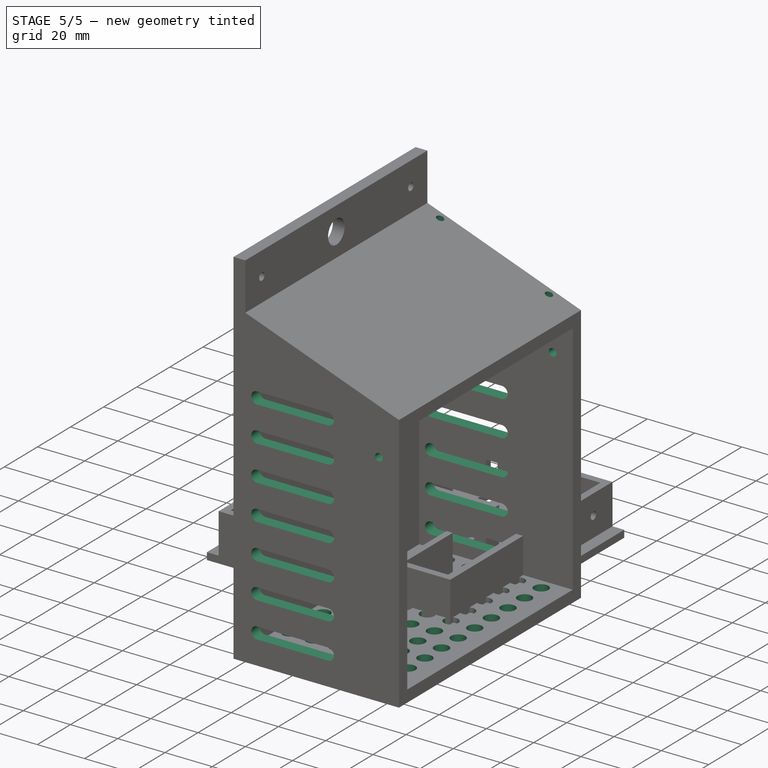
[diagram: stage 5 of 5 — iso view after this stage's code; geometry added in this stage tinted green]
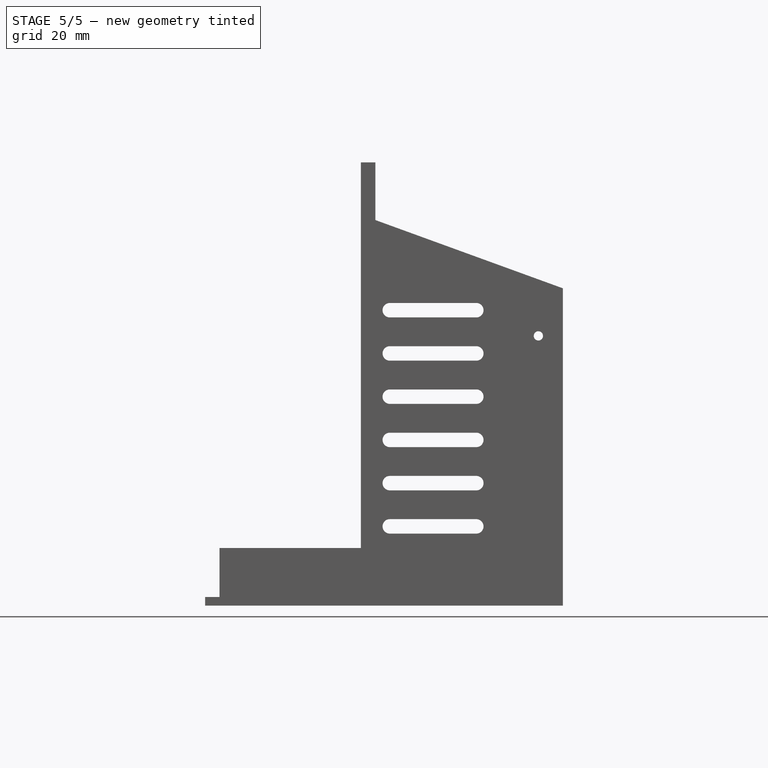
[diagram: stage 5 of 5 — front view after this stage's code; geometry added in this stage tinted green]
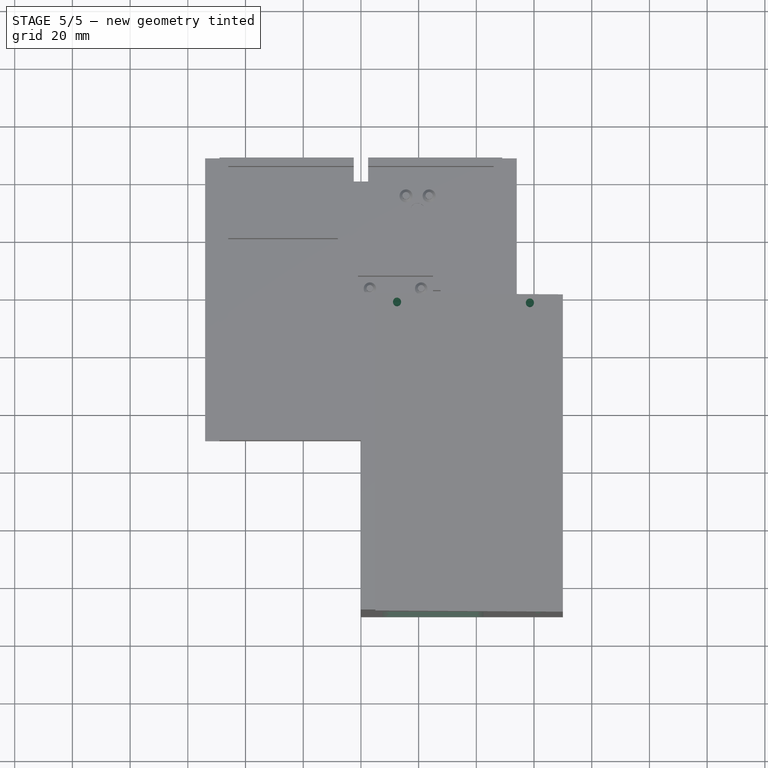
[diagram: stage 5 of 5 — top view after this stage's code; geometry added in this stage tinted green]
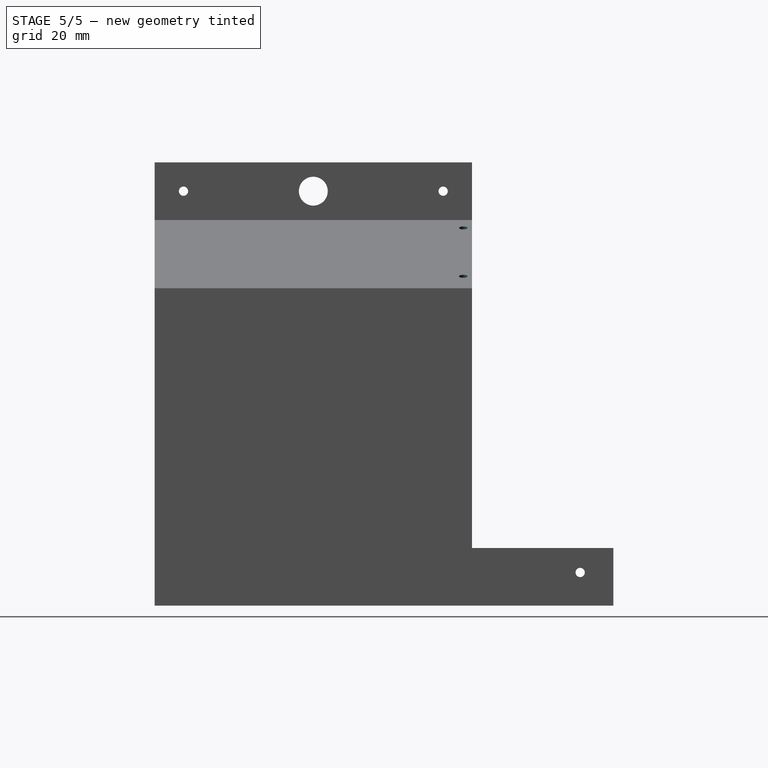
[diagram: stage 5 of 5 — right view after this stage's code; geometry added in this stage tinted green]
FEATURE [Sketcher::SketchObject] Sketch015
  ExternalGeometry = -> [Pocket008]
  FullyConstrained = true
  MapMode = 5
  Placement = pos=(43.5418,1.859e-13,119.63) rot=(0.173648,0,0.984808;3.14159rad)
  Support = -> [Pocket008]
  sketch-geometry (2):
    g0: Circle CenterX=-15.9847 CenterY=3 CenterZ=0 NormalX=0 NormalY=0 NormalZ=1 AngleXU=0 Radius=1.5
    g1: Circle CenterX=33.0153 CenterY=3 CenterZ=0 NormalX=0 NormalY=0 NormalZ=1 AngleXU=0 Radius=1.5
  constraints (6):
    c: Diameter(g0) = 3
    c: Equal(g0,g1)
    c: Horizontal(g0,g1)
    c: Distance(g0,g1) = 49
    c: DistanceY(g-3,g1) = 3
    c: DistanceX(g1,g-3) = 8
FEATURE [PartDesign::Pocket] Pocket009  label="Schraublöcher"
  BaseFeature = -> Pocket008
  Length = 10
  Length2 = 100
  Placement = pos=(0,0,0) rot=(1,0,0;1.5708rad)
  Profile = -> Sketch015
  Type = 0
FEATURE [Sketcher::SketchObject] Sketch017
  FullyConstrained = true
  MapMode = 5
  Placement = pos=(0,0,0) rot=(1,0,0;3.14159rad)
  Support = -> [Pocket009]
  sketch-geometry (119):
    g0: Circle CenterX=9.97658 CenterY=100.331 CenterZ=0 NormalX=0 NormalY=0 NormalZ=1 AngleXU=0 Radius=3
    g1: Circle CenterX=20.0133 CenterY=100.333 CenterZ=0 NormalX=0 NormalY=0 NormalZ=1 AngleXU=0 Radius=3
    g2: LineSegment StartX=9.97658 StartY=100.331 StartZ=0 EndX=20.0133 EndY=100.333 EndZ=0
    g3: Circle CenterX=30.05 CenterY=100.336 CenterZ=0 NormalX=0 NormalY=0 NormalZ=1 AngleXU=0 Radius=3
    g4: LineSegment StartX=20.0133 StartY=100.333 StartZ=0 EndX=30.05 EndY=100.336 EndZ=0
    g5: Circle CenterX=40.0868 CenterY=100.338 CenterZ=0 NormalX=0 NormalY=0 NormalZ=1 AngleXU=0 Radius=3
    g6: LineSegment StartX=30.05 StartY=100.336 StartZ=0 EndX=40.0868 EndY=100.338 EndZ=0
    g7: Circle CenterX=50.1235 CenterY=100.341 CenterZ=0 NormalX=0 NormalY=0 NormalZ=1 AngleXU=0 Radius=3
    g8: LineSegment StartX=40.0868 StartY=100.338 StartZ=0 EndX=50.1235 EndY=100.341 EndZ=0
    g9: Circle CenterX=60.1602 CenterY=100.344 CenterZ=0 NormalX=0 NormalY=0 NormalZ=1 AngleXU=0 Radius=3
    g10: LineSegment StartX=50.1235 StartY=100.341 StartZ=0 EndX=60.1602 EndY=100.344 EndZ=0
    g11: Circle CenterX=9.97918 CenterY=90.2938 CenterZ=0 NormalX=0 NormalY=0 NormalZ=1 AngleXU=0 Radius=3
    g12: LineSegment StartX=9.97658 StartY=100.331 StartZ=0 EndX=9.97918 EndY=90.2938 EndZ=0
    g13: Circle CenterX=20.0159 CenterY=90.2965 CenterZ=0 NormalX=0 NormalY=0 NormalZ=1 AngleXU=0 Radius=3
    g14: LineSegment StartX=9.97918 StartY=90.2938 StartZ=0 EndX=20.0159 EndY=90.2965 EndZ=0
    g15: Circle CenterX=30.0526 CenterY=90.2991 CenterZ=0 NormalX=0 NormalY=0 NormalZ=1 AngleXU=0 Radius=3
    g16: LineSegment StartX=20.0159 StartY=90.2965 StartZ=0 EndX=30.0526 EndY=90.2991 EndZ=0
    g17: Circle CenterX=40.0894 CenterY=90.3017 CenterZ=0 NormalX=0 NormalY=0 NormalZ=1 AngleXU=0 Radius=3
    g18: LineSegment StartX=30.0526 StartY=90.2991 StartZ=0 EndX=40.0894 EndY=90.3017 EndZ=0
    g19: Circle CenterX=50.1261 CenterY=90.3043 CenterZ=0 NormalX=0 NormalY=0 NormalZ=1 AngleXU=0 Radius=3
    g20: LineSegment StartX=40.0894 StartY=90.3017 StartZ=0 EndX=50.1261 EndY=90.3043 EndZ=0
    g21: Circle CenterX=60.1628 CenterY=90.3069 CenterZ=0 NormalX=0 NormalY=0 NormalZ=1 AngleXU=0 Radius=3
    g22: LineSegment StartX=50.1261 StartY=90.3043 StartZ=0 EndX=60.1628 EndY=90.3069 EndZ=0
    g23: Circle CenterX=9.98179 CenterY=80.2571 CenterZ=0 NormalX=0 NormalY=0 NormalZ=1 AngleXU=0 Radius=3
    g24: LineSegment StartX=9.97918 StartY=90.2938 StartZ=0 EndX=9.98179 EndY=80.2571 EndZ=0
    g25: Circle CenterX=20.0185 CenterY=80.2597 CenterZ=0 NormalX=0 NormalY=0 NormalZ=1 AngleXU=0 Radius=3
    g26: LineSegment StartX=9.98179 StartY=80.2571 StartZ=0 EndX=20.0185 EndY=80.2597 EndZ=0
    g27: Circle CenterX=30.0552 CenterY=80.2623 CenterZ=0 NormalX=0 NormalY=0 NormalZ=1 AngleXU=0 Radius=3
    g28: LineSegment StartX=20.0185 StartY=80.2597 StartZ=0 EndX=30.0552 EndY=80.2623 EndZ=0
    g29: Circle CenterX=40.092 CenterY=80.2649 CenterZ=0 NormalX=0 NormalY=0 NormalZ=1 AngleXU=0 Radius=3
    g30: LineSegment StartX=30.0552 StartY=80.2623 StartZ=0 EndX=40.092 EndY=80.2649 EndZ=0
    g31: Circle CenterX=50.1287 CenterY=80.2675 CenterZ=0 NormalX=0 NormalY=0 NormalZ=1 AngleXU=0 Radius=3
    g32: LineSegment StartX=40.092 StartY=80.2649 StartZ=0 EndX=50.1287 EndY=80.2675 EndZ=0
    g33: Circle CenterX=60.1654 CenterY=80.2701 CenterZ=0 NormalX=0 NormalY=0 NormalZ=1 AngleXU=0 Radius=3
    g34: LineSegment StartX=50.1287 StartY=80.2675 StartZ=0 EndX=60.1654 EndY=80.2701 EndZ=0
    g35: Circle CenterX=9.98439 CenterY=70.2204 CenterZ=0 NormalX=0 NormalY=0 NormalZ=1 AngleXU=0 Radius=3
    g36: LineSegment StartX=9.98179 StartY=80.2571 StartZ=0 EndX=9.98439 EndY=70.2204 EndZ=0
    g37: Circle CenterX=20.0211 CenterY=70.223 CenterZ=0 NormalX=0 NormalY=0 NormalZ=1 AngleXU=0 Radius=3
    g38: LineSegment StartX=9.98439 StartY=70.2204 StartZ=0 EndX=20.0211 EndY=70.223 EndZ=0
    g39: Circle CenterX=30.0578 CenterY=70.2256 CenterZ=0 NormalX=0 NormalY=0 NormalZ=1 AngleXU=0 Radius=3
    g40: LineSegment StartX=20.0211 StartY=70.223 StartZ=0 EndX=30.0578 EndY=70.2256 EndZ=0
    g41: Circle CenterX=40.0946 CenterY=70.2282 CenterZ=0 NormalX=0 NormalY=0 NormalZ=1 AngleXU=0 Radius=3
    g42: LineSegment StartX=30.0578 StartY=70.2256 StartZ=0 EndX=40.0946 EndY=70.2282 EndZ=0
    g43: Circle CenterX=50.1313 CenterY=70.2308 CenterZ=0 NormalX=0 NormalY=0 NormalZ=1 AngleXU=0 Radius=3
    g44: LineSegment StartX=40.0946 StartY=70.2282 StartZ=0 EndX=50.1313 EndY=70.2308 EndZ=0
    g45: Circle CenterX=60.168 CenterY=70.2334 CenterZ=0 NormalX=0 NormalY=0 NormalZ=1 AngleXU=0 Radius=3
    g46: LineSegment StartX=50.1313 StartY=70.2308 StartZ=0 EndX=60.168 EndY=70.2334 EndZ=0
    g47: Circle CenterX=9.98699 CenterY=60.1837 CenterZ=0 NormalX=0 NormalY=0 NormalZ=1 AngleXU=0 Radius=3
    g48: LineSegment StartX=9.98439 StartY=70.2204 StartZ=0 EndX=9.98699 EndY=60.1837 EndZ=0
    g49: Circle CenterX=20.0237 CenterY=60.1863 CenterZ=0 NormalX=0 NormalY=0 NormalZ=1 AngleXU=0 Radius=3
    g50: LineSegment StartX=9.98699 StartY=60.1837 StartZ=0 EndX=20.0237 EndY=60.1863 EndZ=0
    g51: Circle CenterX=30.0605 CenterY=60.1889 CenterZ=0 NormalX=0 NormalY=0 NormalZ=1 AngleXU=0 Radius=3
    g52: LineSegment StartX=20.0237 StartY=60.1863 StartZ=0 EndX=30.0605 EndY=60.1889 EndZ=0
    g53: Circle CenterX=40.0972 CenterY=60.1915 CenterZ=0 NormalX=0 NormalY=0 NormalZ=1 AngleXU=0 Radius=3
    g54: LineSegment StartX=30.0605 StartY=60.1889 StartZ=0 EndX=40.0972 EndY=60.1915 EndZ=0
    g55: Circle CenterX=50.1339 CenterY=60.1941 CenterZ=0 NormalX=0 NormalY=0 NormalZ=1 AngleXU=0 Radius=3
    g56: LineSegment StartX=40.0972 StartY=60.1915 StartZ=0 EndX=50.1339 EndY=60.1941 EndZ=0
    g57: Circle CenterX=60.1706 CenterY=60.1967 CenterZ=0 NormalX=0 NormalY=0 NormalZ=1 AngleXU=0 Radius=3
    g58: LineSegment StartX=50.1339 StartY=60.1941 StartZ=0 EndX=60.1706 EndY=60.1967 EndZ=0
    g59: Circle CenterX=9.98959 CenterY=50.1469 CenterZ=0 NormalX=0 NormalY=0 NormalZ=1 AngleXU=0 Radius=3
    g60: LineSegment StartX=9.98699 StartY=60.1837 StartZ=0 EndX=9.98959 EndY=50.1469 EndZ=0
    g61: Circle CenterX=20.0263 CenterY=50.1495 CenterZ=0 NormalX=0 NormalY=0 NormalZ=1 AngleXU=0 Radius=3
    g62: LineSegment StartX=9.98959 StartY=50.1469 StartZ=0 EndX=20.0263 EndY=50.1495 EndZ=0
    g63: Circle CenterX=30.0631 CenterY=50.1521 CenterZ=0 NormalX=0 NormalY=0 NormalZ=1 AngleXU=0 Radius=3
    g64: LineSegment StartX=20.0263 StartY=50.1495 StartZ=0 EndX=30.0631 EndY=50.1521 EndZ=0
    g65: Circle CenterX=40.0998 CenterY=50.1547 CenterZ=0 NormalX=0 NormalY=0 NormalZ=1 AngleXU=0 Radius=3
    g66: LineSegment StartX=30.0631 StartY=50.1521 StartZ=0 EndX=40.0998 EndY=50.1547 EndZ=0
    g67: Circle CenterX=50.1365 CenterY=50.1573 CenterZ=0 NormalX=0 NormalY=0 NormalZ=1 AngleXU=0 Radius=3
    g68: LineSegment StartX=40.0998 StartY=50.1547 StartZ=0 EndX=50.1365 EndY=50.1573 EndZ=0
    g69: Circle CenterX=60.1732 CenterY=50.1599 CenterZ=0 NormalX=0 NormalY=0 NormalZ=1 AngleXU=0 Radius=3
    g70: LineSegment StartX=50.1365 StartY=50.1573 StartZ=0 EndX=60.1732 EndY=50.1599 EndZ=0
    g71: Circle CenterX=9.99219 CenterY=40.1102 CenterZ=0 NormalX=0 NormalY=0 NormalZ=1 AngleXU=0 Radius=3
    g72: LineSegment StartX=9.98959 StartY=50.1469 StartZ=0 EndX=9.99219 EndY=40.1102 EndZ=0
    g73: Circle CenterX=20.0289 CenterY=40.1128 CenterZ=0 NormalX=0 NormalY=0 NormalZ=1 AngleXU=0 Radius=3
    g74: LineSegment StartX=9.99219 StartY=40.1102 StartZ=0 EndX=20.0289 EndY=40.1128 EndZ=0
    g75: Circle CenterX=30.0657 CenterY=40.1154 CenterZ=0 NormalX=0 NormalY=0 NormalZ=1 AngleXU=0 Radius=3
    g76: LineSegment StartX=20.0289 StartY=40.1128 StartZ=0 EndX=30.0657 EndY=40.1154 EndZ=0
    g77: Circle CenterX=40.1024 CenterY=40.118 CenterZ=0 NormalX=0 NormalY=0 NormalZ=1 AngleXU=0 Radius=3
    g78: LineSegment StartX=30.0657 StartY=40.1154 StartZ=0 EndX=40.1024 EndY=40.118 EndZ=0
    g79: Circle CenterX=50.1391 CenterY=40.1206 CenterZ=0 NormalX=0 NormalY=0 NormalZ=1 AngleXU=0 Radius=3
    g80: LineSegment StartX=40.1024 StartY=40.118 StartZ=0 EndX=50.1391 EndY=40.1206 EndZ=0
    g81: Circle CenterX=60.1758 CenterY=40.1232 CenterZ=0 NormalX=0 NormalY=0 NormalZ=1 AngleXU=0 Radius=3
    g82: LineSegment StartX=50.1391 StartY=40.1206 StartZ=0 EndX=60.1758 EndY=40.1232 EndZ=0
    g83: Circle CenterX=9.9948 CenterY=30.0735 CenterZ=0 NormalX=0 NormalY=0 NormalZ=1 AngleXU=0 Radius=3
    g84: LineSegment StartX=9.99219 StartY=40.1102 StartZ=0 EndX=9.9948 EndY=30.0735 EndZ=0
    g85: Circle CenterX=20.0315 CenterY=30.0761 CenterZ=0 NormalX=0 NormalY=0 NormalZ=1 AngleXU=0 Radius=3
    g86: LineSegment StartX=9.9948 StartY=30.0735 StartZ=0 EndX=20.0315 EndY=30.0761 EndZ=0
    g87: Circle CenterX=30.0683 CenterY=30.0787 CenterZ=0 NormalX=0 NormalY=0 NormalZ=1 AngleXU=0 Radius=3
    g88: LineSegment StartX=20.0315 StartY=30.0761 StartZ=0 EndX=30.0683 EndY=30.0787 EndZ=0
    g89: Circle CenterX=40.105 CenterY=30.0813 CenterZ=0 NormalX=0 NormalY=0 NormalZ=1 AngleXU=0 Radius=3
    g90: LineSegment StartX=30.0683 StartY=30.0787 StartZ=0 EndX=40.105 EndY=30.0813 EndZ=0
    g91: Circle CenterX=50.1417 CenterY=30.0839 CenterZ=0 NormalX=0 NormalY=0 NormalZ=1 AngleXU=0 Radius=3
    g92: LineSegment StartX=40.105 StartY=30.0813 StartZ=0 EndX=50.1417 EndY=30.0839 EndZ=0
    g93: Circle CenterX=60.1785 CenterY=30.0865 CenterZ=0 NormalX=0 NormalY=0 NormalZ=1 AngleXU=0 Radius=3
    g94: LineSegment StartX=50.1417 StartY=30.0839 StartZ=0 EndX=60.1785 EndY=30.0865 EndZ=0
    g95: Circle CenterX=9.9974 CenterY=20.0367 CenterZ=0 NormalX=0 NormalY=0 NormalZ=1 AngleXU=0 Radius=3
    g96: LineSegment StartX=9.9948 StartY=30.0735 StartZ=0 EndX=9.9974 EndY=20.0367 EndZ=0
    g97: Circle CenterX=20.0341 CenterY=20.0393 CenterZ=0 NormalX=0 NormalY=0 NormalZ=1 AngleXU=0 Radius=3
    g98: LineSegment StartX=9.9974 StartY=20.0367 StartZ=0 EndX=20.0341 EndY=20.0393 EndZ=0
    g99: Circle CenterX=30.0709 CenterY=20.0419 CenterZ=0 NormalX=0 NormalY=0 NormalZ=1 AngleXU=0 Radius=3
    g100: LineSegment StartX=20.0341 StartY=20.0393 StartZ=0 EndX=30.0709 EndY=20.0419 EndZ=0
    g101: Circle CenterX=40.1076 CenterY=20.0445 CenterZ=0 NormalX=0 NormalY=0 NormalZ=1 AngleXU=0 Radius=3
    g102: LineSegment StartX=30.0709 StartY=20.0419 StartZ=0 EndX=40.1076 EndY=20.0445 EndZ=0
    g103: Circle CenterX=50.1443 CenterY=20.0471 CenterZ=0 NormalX=0 NormalY=0 NormalZ=1 AngleXU=0 Radius=3
    g104: LineSegment StartX=40.1076 StartY=20.0445 StartZ=0 EndX=50.1443 EndY=20.0471 EndZ=0
    g105: Circle CenterX=60.1811 CenterY=20.0497 CenterZ=0 NormalX=0 NormalY=0 NormalZ=1 AngleXU=0 Radius=3
    g106: LineSegment StartX=50.1443 StartY=20.0471 StartZ=0 EndX=60.1811 EndY=20.0497 EndZ=0
    g107: Circle CenterX=10 CenterY=10 CenterZ=0 NormalX=0 NormalY=0 NormalZ=1 AngleXU=0 Radius=3
    g108: LineSegment StartX=9.9974 StartY=20.0367 StartZ=0 EndX=10 EndY=10 EndZ=0
    g109: Circle CenterX=20.0367 CenterY=10.0026 CenterZ=0 NormalX=0 NormalY=0 NormalZ=1 AngleXU=0 Radius=3
    g110: LineSegment StartX=10 StartY=10 StartZ=0 EndX=20.0367 EndY=10.0026 EndZ=0
    g111: Circle CenterX=30.0735 CenterY=10.0052 CenterZ=0 NormalX=0 NormalY=0 NormalZ=1 AngleXU=0 Radius=3
    g112: LineSegment StartX=20.0367 StartY=10.0026 StartZ=0 EndX=30.0735 EndY=10.0052 EndZ=0
    g113: Circle CenterX=40.1102 CenterY=10.0078 CenterZ=0 NormalX=0 NormalY=0 NormalZ=1 AngleXU=0 Radius=3
    g114: LineSegment StartX=30.0735 StartY=10.0052 StartZ=0 EndX=40.1102 EndY=10.0078 EndZ=0
    g115: Circle CenterX=50.1469 CenterY=10.0104 CenterZ=0 NormalX=0 NormalY=0 NormalZ=1 AngleXU=0 Radius=3
    g116: LineSegment StartX=40.1102 StartY=10.0078 StartZ=0 EndX=50.1469 EndY=10.0104 EndZ=0
    g117: Circle CenterX=60.1837 CenterY=10.013 CenterZ=0 NormalX=0 NormalY=0 NormalZ=1 AngleXU=0 Radius=3
    g118: LineSegment StartX=50.1469 StartY=10.0104 StartZ=0 EndX=60.1837 EndY=10.013 EndZ=0
  constraints (298):
    c: Diameter(g0) = 6
    c: Equal(g0,g1) = 6
    c: Coincident(g0,g2)
    c: Coincident(g1,g2)
    c: Distance(g2) = 10.0367
    c: Angle(g2) = 0.000259248
    c: Equal(g0,g3) = 6
    c: Coincident(g1,g4)
    c: Coincident(g3,g4)
    c: Equal(g2,g4)
    c: Parallel(g4,g2)
    c: Equal(g0,g5) = 6
    c: Coincident(g3,g6)
    c: Coincident(g5,g6)
    c: Equal(g2,g6)
    c: Parallel(g6,g2)
    c: Equal(g0,g7) = 6
    c: Coincident(g5,g8)
    c: Coincident(g7,g8)
    c: Equal(g2,g8)
    c: Parallel(g8,g2)
    c: Equal(g0,g9) = 6
    c: Coincident(g7,g10)
    c: Coincident(g9,g10)
    c: Equal(g2,g10)
    c: Parallel(g10,g2)
    c: Equal(g0,g11) = 6
    c: Coincident(g0,g12)
    c: Coincident(g11,g12)
    c: Equal(g12,g2)
    c: Perpendicular(g12,g2)
    c: Equal(g0,g13) = 6
    c: Coincident(g11,g14)
    c: Coincident(g13,g14)
    c: Equal(g2,g14)
    c: Parallel(g14,g2)
    c: Equal(g0,g15) = 6
    c: Coincident(g13,g16)
    c: Coincident(g15,g16)
    c: Equal(g2,g16)
    c: Parallel(g16,g2)
    c: Equal(g0,g17) = 6
    c: Coincident(g15,g18)
    c: Coincident(g17,g18)
    c: Equal(g2,g18)
    c: Parallel(g18,g2)
    c: Equal(g0,g19) = 6
    c: Coincident(g17,g20)
    c: Coincident(g19,g20)
    c: Equal(g2,g20)
    c: Parallel(g20,g2)
    c: Equal(g0,g21) = 6
    c: Coincident(g19,g22)
    c: Coincident(g21,g22)
    c: Equal(g2,g22)
    c: Parallel(g22,g2)
    c: Equal(g0,g23) = 6
    c: Coincident(g11,g24)
    c: Coincident(g23,g24)
    c: Equal(g12,g24)
    c: Perpendicular(g24,g2)
    c: Equal(g0,g25) = 6
    c: Coincident(g23,g26)
    c: Coincident(g25,g26)
    c: Equal(g2,g26)
    c: Parallel(g26,g2)
    c: Equal(g0,g27) = 6
    c: Coincident(g25,g28)
    c: Coincident(g27,g28)
    c: Equal(g2,g28)
    c: Parallel(g28,g2)
    c: Equal(g0,g29) = 6
    c: Coincident(g27,g30)
    c: Coincident(g29,g30)
    c: Equal(g2,g30)
    c: Parallel(g30,g2)
    c: Equal(g0,g31) = 6
    c: Coincident(g29,g32)
    c: Coincident(g31,g32)
    c: Equal(g2,g32)
    c: Parallel(g32,g2)
    c: Equal(g0,g33) = 6
    c: Coincident(g31,g34)
    c: Coincident(g33,g34)
    c: Equal(g2,g34)
    c: Parallel(g34,g2)
    c: Equal(g0,g35) = 6
    c: Coincident(g23,g36)
    c: Coincident(g35,g36)
    c: Equal(g12,g36)
    c: Perpendicular(g36,g2)
    c: Equal(g0,g37) = 6
    c: Coincident(g35,g38)
    c: Coincident(g37,g38)
    c: Equal(g2,g38)
    c: Parallel(g38,g2)
    c: Equal(g0,g39) = 6
    c: Coincident(g37,g40)
    c: Coincident(g39,g40)
    c: Equal(g2,g40)
    c: Parallel(g40,g2)
    c: Equal(g0,g41) = 6
    c: Coincident(g39,g42)
    c: Coincident(g41,g42)
    c: Equal(g2,g42)
    c: Parallel(g42,g2)
    c: Equal(g0,g43) = 6
    c: Coincident(g41,g44)
    c: Coincident(g43,g44)
    c: Equal(g2,g44)
    c: Parallel(g44,g2)
    c: Equal(g0,g45) = 6
    c: Coincident(g43,g46)
    c: Coincident(g45,g46)
    c: Equal(g2,g46)
    c: Parallel(g46,g2)
    c: Equal(g0,g47) = 6
    c: Coincident(g35,g48)
    c: Coincident(g47,g48)
    c: Equal(g12,g48)
    c: Perpendicular(g48,g2)
    c: Equal(g0,g49) = 6
    c: Coincident(g47,g50)
    c: Coincident(g49,g50)
    c: Equal(g2,g50)
    c: Parallel(g50,g2)
    c: Equal(g0,g51) = 6
    c: Coincident(g49,g52)
    c: Coincident(g51,g52)
    c: Equal(g2,g52)
    c: Parallel(g52,g2)
    c: Equal(g0,g53) = 6
    c: Coincident(g51,g54)
    c: Coincident(g53,g54)
    c: Equal(g2,g54)
    c: Parallel(g54,g2)
    c: Equal(g0,g55) = 6
    c: Coincident(g53,g56)
    c: Coincident(g55,g56)
    c: Equal(g2,g56)
    c: Parallel(g56,g2)
    c: Equal(g0,g57) = 6
    c: Coincident(g55,g58)
    c: Coincident(g57,g58)
    c: Equal(g2,g58)
    c: Parallel(g58,g2)
    c: Equal(g0,g59) = 6
    c: Coincident(g47,g60)
    c: Coincident(g59,g60)
    c: Equal(g12,g60)
    c: Perpendicular(g60,g2)
    c: Equal(g0,g61) = 6
    c: Coincident(g59,g62)
    c: Coincident(g61,g62)
    c: Equal(g2,g62)
    c: Parallel(g62,g2)
    c: Equal(g0,g63) = 6
    c: Coincident(g61,g64)
    c: Coincident(g63,g64)
    c: Equal(g2,g64)
    c: Parallel(g64,g2)
    c: Equal(g0,g65) = 6
    c: Coincident(g63,g66)
    c: Coincident(g65,g66)
    c: Equal(g2,g66)
    c: Parallel(g66,g2)
    c: Equal(g0,g67) = 6
    c: Coincident(g65,g68)
    c: Coincident(g67,g68)
    c: Equal(g2,g68)
    c: Parallel(g68,g2)
    c: Equal(g0,g69) = 6
    c: Coincident(g67,g70)
    c: Coincident(g69,g70)
    c: Equal(g2,g70)
    c: Parallel(g70,g2)
    c: Equal(g0,g71) = 6
    c: Coincident(g59,g72)
    c: Coincident(g71,g72)
    c: Equal(g12,g72)
    c: Perpendicular(g72,g2)
    c: Equal(g0,g73) = 6
    c: Coincident(g71,g74)
    c: Coincident(g73,g74)
    c: Equal(g2,g74)
    c: Parallel(g74,g2)
    c: Equal(g0,g75) = 6
    c: Coincident(g73,g76)
    c: Coincident(g75,g76)
    c: Equal(g2,g76)
    c: Parallel(g76,g2)
    c: Equal(g0,g77) = 6
    c: Coincident(g75,g78)
    c: Coincident(g77,g78)
    c: Equal(g2,g78)
    c: Parallel(g78,g2)
    c: Equal(g0,g79) = 6
    c: Coincident(g77,g80)
    c: Coincident(g79,g80)
    c: Equal(g2,g80)
    c: Parallel(g80,g2)
    c: Equal(g0,g81) = 6
    c: Coincident(g79,g82)
    c: Coincident(g81,g82)
    c: Equal(g2,g82)
    c: Parallel(g82,g2)
    c: Equal(g0,g83) = 6
    c: Coincident(g71,g84)
    c: Coincident(g83,g84)
    c: Equal(g12,g84)
    c: Perpendicular(g84,g2)
    c: Equal(g0,g85) = 6
    c: Coincident(g83,g86)
    c: Coincident(g85,g86)
    c: Equal(g2,g86)
    c: Parallel(g86,g2)
    c: Equal(g0,g87) = 6
    c: Coincident(g85,g88)
    c: Coincident(g87,g88)
    c: Equal(g2,g88)
    c: Parallel(g88,g2)
    c: Equal(g0,g89) = 6
    c: Coincident(g87,g90)
    c: Coincident(g89,g90)
    c: Equal(g2,g90)
    c: Parallel(g90,g2)
    c: Equal(g0,g91) = 6
    c: Coincident(g89,g92)
    c: Coincident(g91,g92)
    c: Equal(g2,g92)
    c: Parallel(g92,g2)
    c: Equal(g0,g93) = 6
    c: Coincident(g91,g94)
    c: Coincident(g93,g94)
    c: Equal(g2,g94)
    c: Parallel(g94,g2)
    c: Equal(g0,g95) = 6
    c: Coincident(g83,g96)
    c: Coincident(g95,g96)
    c: Equal(g12,g96)
    c: Perpendicular(g96,g2)
    c: Equal(g0,g97) = 6
    c: Coincident(g95,g98)
    c: Coincident(g97,g98)
    c: Equal(g2,g98)
    c: Parallel(g98,g2)
    c: Equal(g0,g99) = 6
    c: Coincident(g97,g100)
    c: Coincident(g99,g100)
    c: Equal(g2,g100)
    c: Parallel(g100,g2)
    c: Equal(g0,g101) = 6
    c: Coincident(g99,g102)
    c: Coincident(g101,g102)
    c: Equal(g2,g102)
    c: Parallel(g102,g2)
    c: Equal(g0,g103) = 6
    c: Coincident(g101,g104)
    c: Coincident(g103,g104)
    c: Equal(g2,g104)
    c: Parallel(g104,g2)
    c: Equal(g0,g105) = 6
    c: Coincident(g103,g106)
    c: Coincident(g105,g106)
    c: Equal(g2,g106)
    c: Parallel(g106,g2)
    c: Equal(g0,g107) = 6
    c: Coincident(g95,g108)
    c: Coincident(g107,g108)
    c: Equal(g12,g108)
    c: Perpendicular(g108,g2)
    c: Equal(g0,g109) = 6
    c: Coincident(g107,g110)
    c: Coincident(g109,g110)
    c: Equal(g2,g110)
    c: Parallel(g110,g2)
    c: Equal(g0,g111) = 6
    c: Coincident(g109,g112)
    c: Coincident(g111,g112)
    c: Equal(g2,g112)
    c: Parallel(g112,g2)
    c: Equal(g0,g113) = 6
    c: Coincident(g111,g114)
    c: Coincident(g113,g114)
    c: Equal(g2,g114)
    c: Parallel(g114,g2)
    c: Equal(g0,g115) = 6
    c: Coincident(g113,g116)
    c: Coincident(g115,g116)
    c: Equal(g2,g116)
    c: Parallel(g116,g2)
    c: Equal(g0,g117) = 6
    c: Coincident(g115,g118)
    c: Coincident(g117,g118)
    c: Equal(g2,g118)
    c: Parallel(g118,g2)
    c: DistanceX(g-1,g107) = 10
    c: DistanceY(g-1,g107) = 10
FEATURE [PartDesign::Pocket] Pocket011  label="Schruabloch Links"
  BaseFeature = -> Pocket009
  Length = 5
  Length2 = 100
  Placement = pos=(0,0,0) rot=(1,0,0;1.5708rad)
  Profile = -> Sketch017
  Type = 2
FEATURE [Sketcher::SketchObject] Sketch018
  ExternalGeometry = -> [Pocket010]
  FullyConstrained = true
  MapMode = 5
  Placement = pos=(49,0,0) rot=(0.57735,0.57735,0.57735;2.0944rad)
  Support = -> [Pocket010]
  constraints (2):
    c: DistanceX(g-3,g-4) = 11.5
    c: DistanceY(g-4,g-3) = 8.5
FEATURE [Sketcher::SketchObject] Sketch019
  ExternalGeometry = -> [Pocket011]
  FullyConstrained = true
  MapMode = 5
  Placement = pos=(0,-110,2.687e-13) rot=(1,0,0;1.5708rad)
  Support = -> [Pocket011]
  sketch-geometry (1):
    g0: Circle CenterX=61.5 CenterY=93.5 CenterZ=0 NormalX=0 NormalY=0 NormalZ=1 AngleXU=0 Radius=1.6
  constraints (3):
    c: Diameter(g0) = 3.2
    c: DistanceX(g0,g-3) = 8.5
    c: DistanceY(g0,g-3) = 11.5
FEATURE [PartDesign::Pocket] Pocket012  label="Schraubloch Rechts"
  BaseFeature = -> Pocket011
  Length = 5
  Length2 = 100
  Placement = pos=(0,0,0) rot=(1,0,0;1.5708rad)
  Profile = -> Sketch019
  Type = 1
FEATURE [Sketcher::SketchObject] Sketch020
  ExternalGeometry = -> [Pocket012]
  FullyConstrained = true
  MapMode = 5
  Placement = pos=(0,-110,3.175e-13) rot=(1,0,0;1.5708rad)
  Support = -> [Pocket012]
  sketch-geometry (34):
    g0: ArcOfCircle CenterX=10 CenterY=12.5 CenterZ=0 NormalX=0 NormalY=0 NormalZ=1 AngleXU=0 Radius=2.5 StartAngle=1.5708 EndAngle=4.71239
    g1: ArcOfCircle CenterX=40 CenterY=12.5 CenterZ=0 NormalX=0 NormalY=0 NormalZ=1 AngleXU=0 Radius=2.5 StartAngle=4.71239 EndAngle=7.85398
    g2: LineSegment StartX=10 StartY=10 StartZ=0 EndX=40 EndY=10 EndZ=0
    g3: LineSegment StartX=10 StartY=15 StartZ=0 EndX=40 EndY=15 EndZ=0
    g4: ArcOfCircle CenterX=10 CenterY=27.4844 CenterZ=0 NormalX=0 NormalY=0 NormalZ=1 AngleXU=0 Radius=2.5 StartAngle=1.5708 EndAngle=4.71239
    g5: ArcOfCircle CenterX=40 CenterY=27.4844 CenterZ=0 NormalX=0 NormalY=0 NormalZ=1 AngleXU=0 Radius=2.5 StartAngle=4.71239 EndAngle=7.85398
    g6: LineSegment StartX=10 StartY=24.9844 StartZ=0 EndX=40 EndY=24.9844 EndZ=0
    g7: LineSegment StartX=10 StartY=29.9844 StartZ=0 EndX=40 EndY=29.9844 EndZ=0
    g8: LineSegment StartX=10 StartY=15 StartZ=0 EndX=10 EndY=29.9844 EndZ=0
    g9: ArcOfCircle CenterX=10 CenterY=42.4687 CenterZ=0 NormalX=0 NormalY=0 NormalZ=1 AngleXU=0 Radius=2.5 StartAngle=1.5708 EndAngle=4.71239
    g10: ArcOfCircle CenterX=40 CenterY=42.4687 CenterZ=0 NormalX=0 NormalY=0 NormalZ=1 AngleXU=0 Radius=2.5 StartAngle=4.71239 EndAngle=7.85398
    g11: LineSegment StartX=10 StartY=39.9687 StartZ=0 EndX=40 EndY=39.9687 EndZ=0
    g12: LineSegment StartX=10 StartY=44.9687 StartZ=0 EndX=40 EndY=44.9687 EndZ=0
    g13: LineSegment StartX=10 StartY=29.9844 StartZ=0 EndX=10 EndY=44.9687 EndZ=0
    g14: ArcOfCircle CenterX=10 CenterY=57.4531 CenterZ=0 NormalX=0 NormalY=0 NormalZ=1 AngleXU=0 Radius=2.5 StartAngle=1.5708 EndAngle=4.71239
    g15: ArcOfCircle CenterX=40 CenterY=57.4531 CenterZ=0 NormalX=0 NormalY=0 NormalZ=1 AngleXU=0 Radius=2.5 StartAngle=4.71239 EndAngle=7.85398
    g16: LineSegment StartX=10 StartY=54.9531 StartZ=0 EndX=40 EndY=54.9531 EndZ=0
    g17: LineSegment StartX=10 StartY=59.9531 StartZ=0 EndX=40 EndY=59.9531 EndZ=0
    g18: LineSegment StartX=10 StartY=44.9687 StartZ=0 EndX=10 EndY=59.9531 EndZ=0
    g19: ArcOfCircle CenterX=10 CenterY=72.4375 CenterZ=0 NormalX=0 NormalY=0 NormalZ=1 AngleXU=0 Radius=2.5 StartAngle=1.5708 EndAngle=4.71239
    g20: ArcOfCircle CenterX=40 CenterY=72.4375 CenterZ=0 NormalX=0 NormalY=0 NormalZ=1 AngleXU=0 Radius=2.5 StartAngle=4.71239 EndAngle=7.85398
    g21: LineSegment StartX=10 StartY=69.9375 StartZ=0 EndX=40 EndY=69.9375 EndZ=0
    g22: LineSegment StartX=10 StartY=74.9375 StartZ=0 EndX=40 EndY=74.9375 EndZ=0
    g23: LineSegment StartX=10 StartY=59.9531 StartZ=0 EndX=10 EndY=74.9375 EndZ=0
    g24: ArcOfCircle CenterX=10 CenterY=87.4219 CenterZ=0 NormalX=0 NormalY=0 NormalZ=1 AngleXU=0 Radius=2.5 StartAngle=1.5708 EndAngle=4.71239
    g25: ArcOfCircle CenterX=40 CenterY=87.4219 CenterZ=0 NormalX=0 NormalY=0 NormalZ=1 AngleXU=0 Radius=2.5 StartAngle=4.71239 EndAngle=7.85398
    g26: LineSegment StartX=10 StartY=84.9219 StartZ=0 EndX=40 EndY=84.9219 EndZ=0
    g27: LineSegment StartX=10 StartY=89.9219 StartZ=0 EndX=40 EndY=89.9219 EndZ=0
    g28: ArcOfCircle CenterX=10 CenterY=102.406 CenterZ=0 NormalX=0 NormalY=0 NormalZ=1 AngleXU=0 Radius=2.5 StartAngle=1.5708 EndAngle=4.71239
    g29: ArcOfCircle CenterX=40 CenterY=102.406 CenterZ=0 NormalX=0 NormalY=0 NormalZ=1 AngleXU=0 Radius=2.5 StartAngle=4.71239 EndAngle=7.85398
    g30: LineSegment StartX=10 StartY=99.9062 StartZ=0 EndX=40 EndY=99.9062 EndZ=0
    g31: LineSegment StartX=10 StartY=104.906 StartZ=0 EndX=40 EndY=104.906 EndZ=0
    g32: LineSegment StartX=10 StartY=74.9375 StartZ=0 EndX=10 EndY=89.9219 EndZ=0
    g33: LineSegment StartX=10 StartY=89.9219 StartZ=0 EndX=10 EndY=104.906 EndZ=0
  constraints (82):
    c: Tangent(g0,g3) = 1.5708
    c: Tangent(g0,g2) = -1.5708
    c: Tangent(g2,g1) = -1.5708
    c: Tangent(g3,g1) = 1.5708
    c: Horizontal(g2)
    c: Equal(g0,g1)
    c: Distance(g1,g1) = 5
    c: DistanceX(g1,g-3) = 30
    c: Distance(g2) = 30
    c: Tangent(g4,g7) = 1.5708
    c: Tangent(g4,g6) = -1.5708
    c: Tangent(g6,g5) = -1.5708
    c: Tangent(g7,g5) = 1.5708
    c: Horizontal(g6)
    c: Equal(g4,g5)
    c: Equal(g1,g5) = 5
    c: Equal(g2,g6) = 30
    c: Coincident(g0,g8)
    c: Coincident(g4,g8)
    c: Distance(g8) = 14.9844
    c: Angle(g8) = 1.5708
    c: Tangent(g9,g12) = 1.5708
    c: Tangent(g9,g11) = -1.5708
    c: Tangent(g11,g10) = -1.5708
    c: Tangent(g12,g10) = 1.5708
    c: Horizontal(g11)
    c: Equal(g9,g10)
    c: Equal(g1,g10) = 5
    c: Equal(g2,g11) = 30
    c: Coincident(g4,g13)
    c: Coincident(g9,g13)
    c: Equal(g8,g13)
    c: Parallel(g13,g8)
    c: Tangent(g14,g17) = 1.5708
    c: Tangent(g14,g16) = -1.5708
    c: Tangent(g16,g15) = -1.5708
    c: Tangent(g17,g15) = 1.5708
    c: Horizontal(g16)
    c: Equal(g14,g15)
    c: Equal(g1,g15) = 5
    c: Equal(g2,g16) = 30
    c: Coincident(g9,g18)
    c: Coincident(g14,g18)
    c: Equal(g8,g18)
    c: Parallel(g18,g8)
    c: Tangent(g19,g22) = 1.5708
    c: Tangent(g19,g21) = -1.5708
    c: Tangent(g21,g20) = -1.5708
    c: Tangent(g22,g20) = 1.5708
    c: Horizontal(g21)
    c: Equal(g19,g20)
    c: Equal(g1,g20) = 5
    c: Equal(g2,g21) = 30
    c: Coincident(g14,g23)
    c: Coincident(g19,g23)
    c: Equal(g8,g23)
    c: Parallel(g23,g8)
    c: DistanceY(g-3,g1) = 10
    c: Tangent(g24,g27) = 1.5708
    c: Tangent(g24,g26) = -1.5708
    c: Tangent(g26,g25) = -1.5708
    c: Tangent(g27,g25) = 1.5708
    c: Horizontal(g26)
    c: Equal(g24,g25)
    c: Tangent(g28,g31) = 1.5708
    c: Tangent(g28,g30) = -1.5708
    c: Tangent(g30,g29) = -1.5708
    c: Tangent(g31,g29) = 1.5708
    c: Horizontal(g30)
    c: Equal(g28,g29)
    c: Coincident(g32,g19)
    c: Coincident(g32,g24)
    c: Coincident(g33,g24)
    c: Coincident(g33,g28)
    c: Vertical(g33)
    c: Vertical(g32)
    c: Equal(g23,g32)
    c: Equal(g32,g33)
    c: Equal(g19,g24)
    c: Equal(g19,g28)
    c: Equal(g22,g27)
    c: Equal(g27,g31)
FEATURE [PartDesign::Pocket] Pocket013
  BaseFeature = -> Pocket012
  Length = 5
  Length2 = 100
  Placement = pos=(0,0,0) rot=(1,0,0;1.5708rad)
  Profile = -> Sketch020
  Type = 1
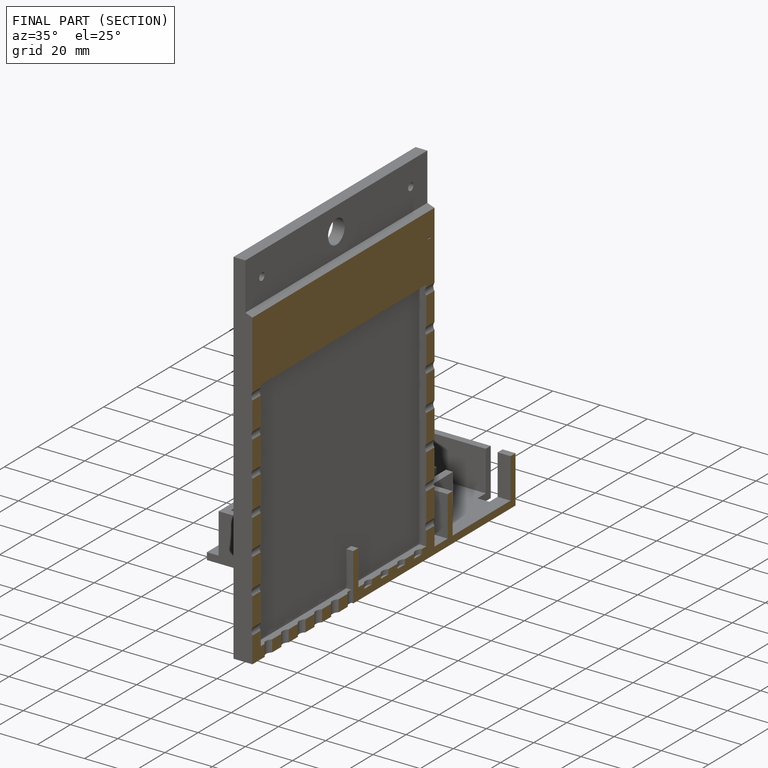
[diagram: finished part — half-section view (interior)]
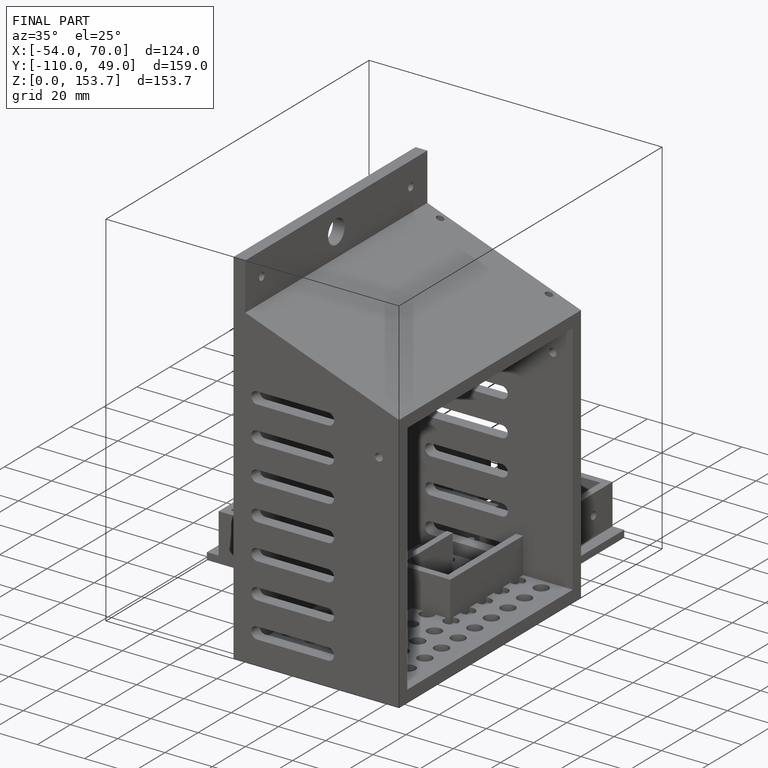
[diagram: finished part — iso view with bounding-box wireframe]
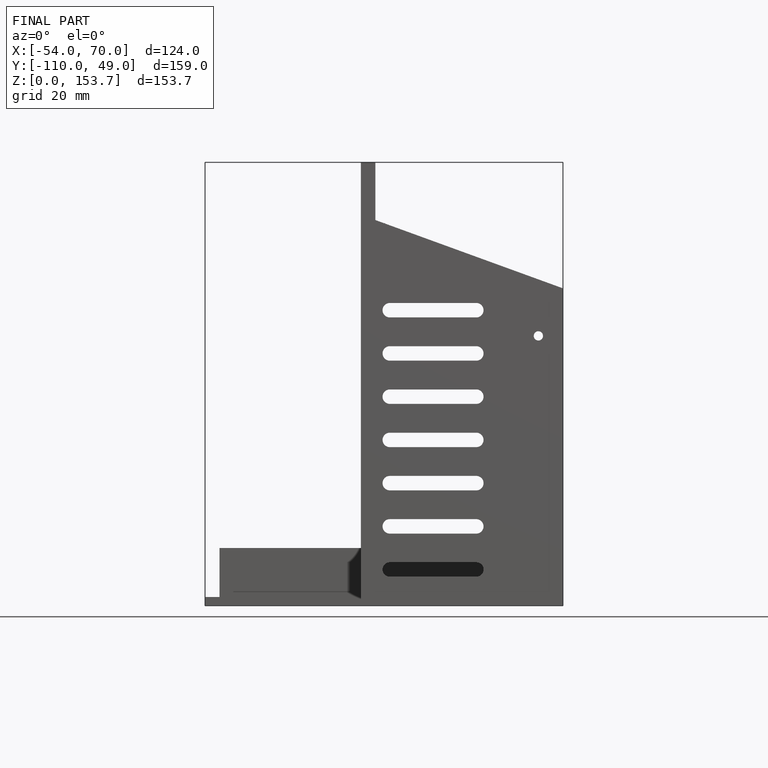
[diagram: finished part — front view with bounding-box wireframe]
